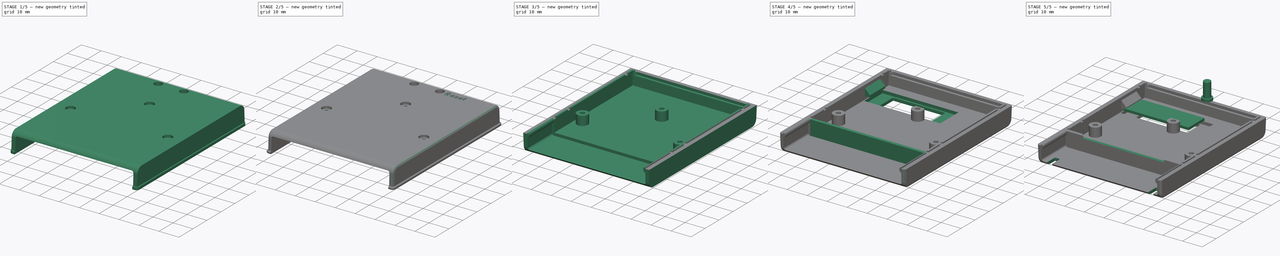
[diagram: build sequence overview — one tinted view per stage of 5, left to right]
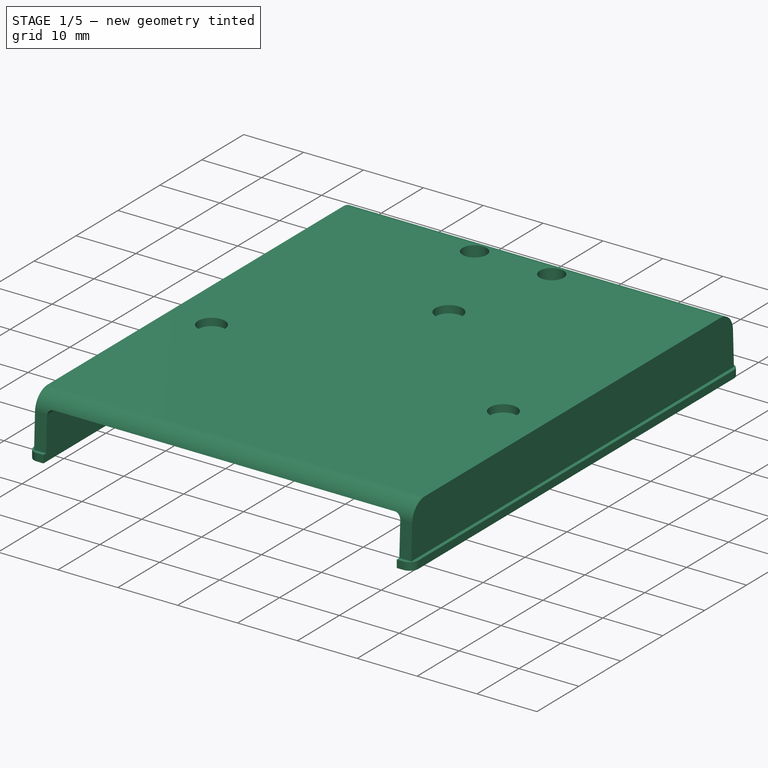
[diagram: stage 1 of 5 — iso view after this stage's code; geometry added in this stage tinted green]
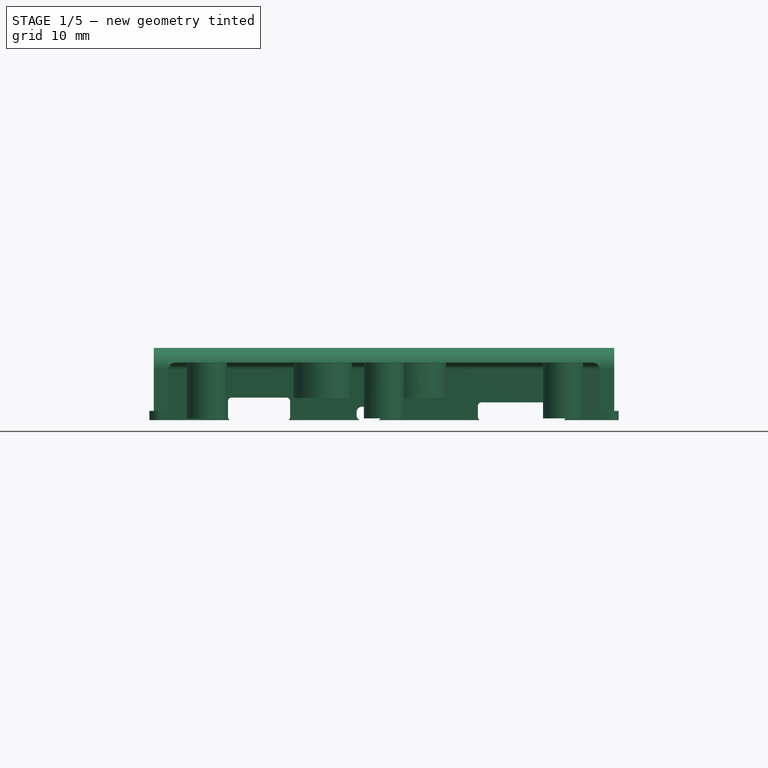
[diagram: stage 1 of 5 — front view after this stage's code; geometry added in this stage tinted green]
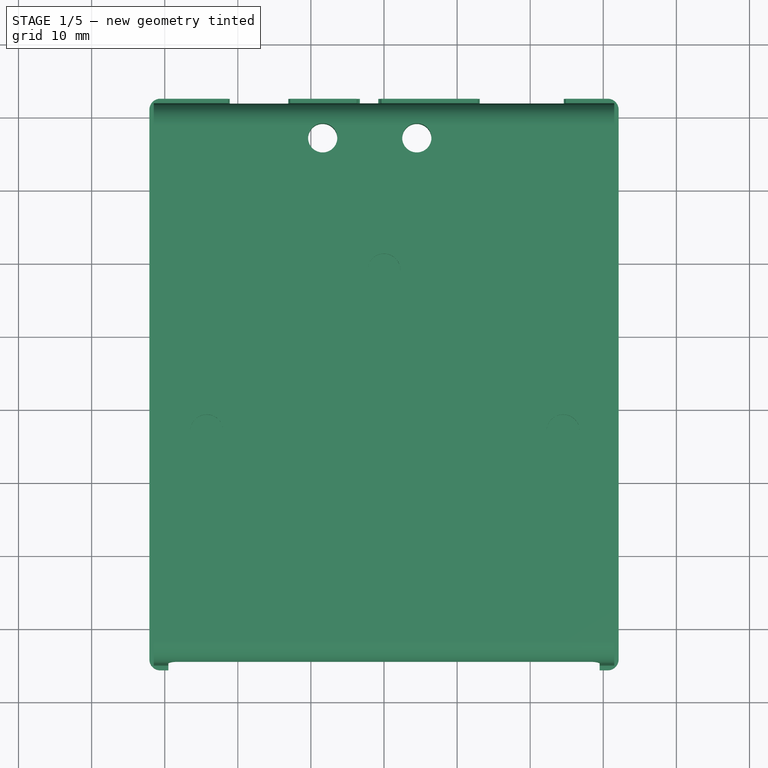
[diagram: stage 1 of 5 — top view after this stage's code; geometry added in this stage tinted green]
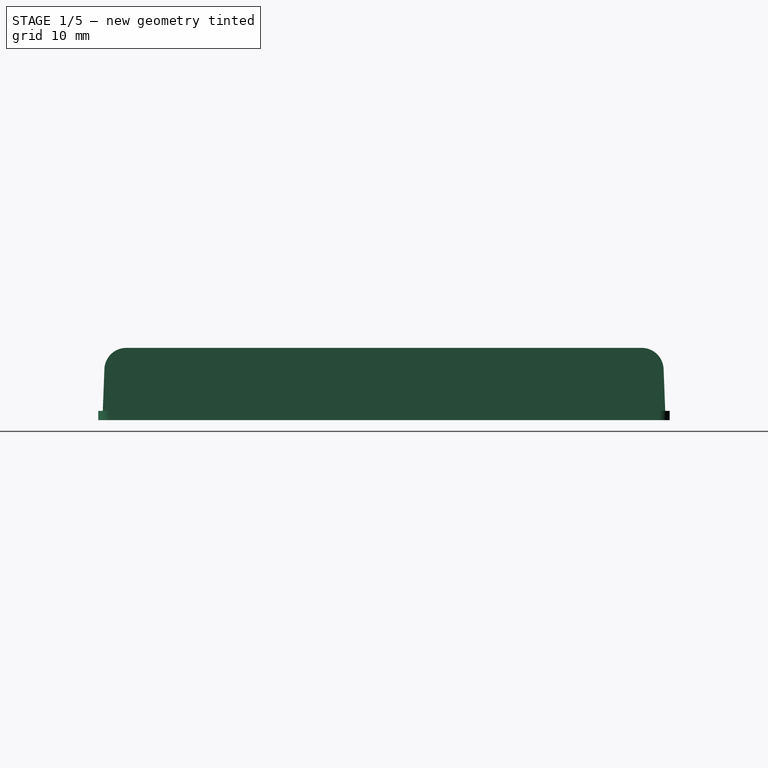
[diagram: stage 1 of 5 — right view after this stage's code; geometry added in this stage tinted green]
FCSTD DOCUMENT  (FreeCAD 1.0R39285 (Git))
Label: DecentCart2040
License: Creative Commons Attribution 4.0
LicenseURL: https://creativecommons.org/licenses/by/4.0/
objects: Part::Feature×30, Sketcher::SketchObject×24, PartDesign::Pad×16, PartDesign::Pocket×16, App::Part×8, PartDesign::SubShapeBinder×8, PartDesign::Plane×4, PartDesign::Body×4, PartDesign::Fillet×4, PartDesign::Point×2, PartDesign::Draft×2, PartDesign::Thickness×2, App::LinkGroup×2, PartDesign::Line×1, App::VRMLObject×1, PartDesign::Chamfer×1, PartDesign::FeatureBase×1, Part::Box×1, Part::Part2DObjectPython×1, Measure::MeasureDistance×1
note: 224 computed .brp shape members not serialized (recipe doc carries the construction recipe); baked Part::Feature solids carry a one-line shape summary decoded from their .brp

FEATURE [Part::Feature] Part__Feature  label="SMxB-SRSS-TB"
  shape: bbox 5 x 4.95 x 2.95 mm, 225 faces, 6 solids (baked)
FEATURE [App::Part] SM3B_SRSS_TB  label="SM3B-SRSS-TB"
  Group = -> [Part__Feature]
  Origin = -> Origin
  Placement = pos=(89.374,-62.678,1.65) rot=(0,0,1;1.5708rad)
FEATURE [Part::Feature] Part__Feature001  label="TS-1187A v2"
  shape: bbox 6.5 x 5.1 x 1.4 mm, 132 faces, 10 solids (baked)
FEATURE [App::Part] TS_1187A  label="TS-1187A"
  Group = -> [Part__Feature001]
  Origin = -> Origin001
  Placement = pos=(74.5,-30.9,1.65) rot=(0,0,1;0rad)
FEATURE [Part::Feature] Part__Feature002  label="microSD_card_slot"
  shape: bbox 15.98 x 15.49 x 2.409 mm, 614 faces, 11 solids (baked)
FEATURE [App::Part] micro_SD_card_slot  label="micro SD card slot"
  Group = -> [Part__Feature002]
  Origin = -> Origin002
  Placement = pos=(81.59,-35.242,10.55) rot=(0,0,1;3.14159rad)
FEATURE [Part::Feature] Part__Feature003  label="microSD"
  shape: bbox 11.09 x 15 x 1.06 mm, 110 faces, 9 solids (baked)
FEATURE [App::Part] microSD_card
  Group = -> [Part__Feature003]
  Origin = -> Origin003
  Placement = pos=(81.52,-33.992,10.45) rot=(0,0,1;3.14159rad)
FEATURE [Part::Feature] Part__Feature004  label="TS-1187A v003"
  shape: bbox 6.5 x 5.1 x 1.4 mm, 132 faces, 10 solids (baked)
FEATURE [App::Part] TS_1187A001  label="TS-1187A001"
  Group = -> [Part__Feature004]
  Origin = -> Origin004
  Placement = pos=(61.6,-30.9,1.65) rot=(0,0,1;0rad)
FEATURE [Part::Feature] Part__Feature005  label="SMxB-SRSS-TB001"
  shape: bbox 5 x 4.95 x 2.95 mm, 225 faces, 6 solids (baked)
FEATURE [App::Part] SM3B_SRSS_TB001  label="SM3B-SRSS-TB001"
  Group = -> [Part__Feature005]
  Origin = -> Origin005
  Placement = pos=(77.506,-57.457,1.65) rot=(0,0,1;1.5708rad)
FEATURE [Part::Feature] Part__Feature006  label="0.91in OLED Module - Without Glass"
  shape: bbox 37.96 x 12.13 x 2.951 mm, 1592 faces, 19 solids (baked)
FEATURE [App::Part] __91in_OLED_Module___Without_Glass  label="0.91in OLED Module - Without Glass001"
  Group = -> [Part__Feature006]
  Origin = -> Origin006
  Placement = pos=(60.9875,-40.45,-6.55) rot=(0,1,0;3.14159rad)
FEATURE [Part::Feature] Part__Feature007  label="DecentCart2040_PCB"
  shape: bbox 56 x 70 x 1.6 mm, 37 faces (baked)
FEATURE [App::Part] DecentCart2040_1  label="DecentCart2040 1"
  Group = -> [SM3B_SRSS_TB,TS_1187A,micro_SD_card_slot,microSD_card,TS_1187A001,SM3B_SRSS_TB001,__91in_OLED_Module___Without_Glass,Part__Feature007]
  Origin = -> Origin007
FEATURE [PartDesign::SubShapeBinder] Binder  label="PCB Binder"
  BindCopyOnChange = 0
  BindMode = 0
  ClaimChildren = false
  Context = -> Body [Binder.]
  Fuse = false
  MakeFace = true
  OffsetFill = false
  OffsetIntersection = false
  OffsetJoinType = 0
  OffsetOpenResult = false
  PartialLoad = false
  Placement = pos=(-70,98,-2) rot=(0,0,1;0rad)
  Relative = true
  Support = -> [DecentCart2040_1[Part__Feature007.]]
  _Version = 2
FEATURE [Sketcher::SketchObject] Sketch
  ArcFitTolerance = 1e-06
  AttachmentSupport = -> [YZ_Plane008]
  ExternalGeometry = -> [Binder]
  FullyConstrained = true
  MakeInternals = false
  MapMode = 5
  Placement = pos=(0,0,0) rot=(0.57735,0.57735,0.57735;2.0944rad)
  sketch-geometry (7):
    g0: LineSegment StartX=-5 StartY=0 StartZ=0 EndX=-4.75 EndY=6.36769 EndZ=0
    g1: ArcOfCircle CenterX=-1.75231 CenterY=6.25 CenterZ=0 NormalX=0 NormalY=0 NormalZ=1 AngleXU=0 Radius=3 StartAngle=1.5708 EndAngle=3.10235
    g2: LineSegment StartX=-1.75231 StartY=9.25 StartZ=0 EndX=68.7523 EndY=9.25 EndZ=0
    g3: ArcOfCircle CenterX=68.7523 CenterY=6.25 CenterZ=0 NormalX=0 NormalY=0 NormalZ=1 AngleXU=0 Radius=3 StartAngle=0.0392405 EndAngle=1.5708
    g4: LineSegment StartX=71.75 StartY=6.36769 StartZ=0 EndX=72 EndY=0 EndZ=0
    g5: LineSegment StartX=72 StartY=0 StartZ=0 EndX=-5 EndY=0 EndZ=0
    g6: LineSegment [constr] StartX=33.5 StartY=0 StartZ=0 EndX=33.5 EndY=9.25 EndZ=0
  constraints (18):
    c: PointOnObject(g0,g-1)
    c: Tangent(g0,g1) = 1.5708
    c: Horizontal(g2)
    c: Tangent(g2,g3) = 1.5708
    c: Coincident(g4,g5)
    c: Coincident(g5,g0)
    c: Tangent(g3,g4) = 1.5708
    c: Tangent(g1,g2) = 1.5708
    c: Horizontal(g0,g3)
    c: Radius(g1) = 3
    c: DistanceX(g0,g3) = 76.5
    c: DistanceX(g0,g4) = 77
    c: PointOnObject(g6,g2)
    c: Symmetric(g1,g2,g6)
    c: DistanceY(g4,g2) = 9.25
    c: DistanceX(g0,g-3) = 5
    c: Symmetric(g0,g4,g6)
    c: PointOnObject(g6,g-1)
FEATURE [PartDesign::Pad] Pad  label="General shape of the thing"
  Direction = (1,0,0)
  Length = 63
  Length2 = 10
  Midplane = true
  Placement = pos=(0,0,0) rot=(1,1,1;2.0944rad)
  Profile = -> Sketch
  ReferenceAxis = -> Sketch [N_Axis]
  Suppressed = false
  Type = 0
FEATURE [PartDesign::Thickness] Thickness  label="Dig the insides"
  Base = -> Pad [Face6]
  BaseFeature = -> Pad
  Intersection = false
  Join = 0
  Mode = 0
  Reversed = true
  SupportTransform = false
  Suppressed = false
  Value = 2
FEATURE [Sketcher::SketchObject] Sketch001
  ArcFitTolerance = 1e-06
  AttachmentSupport = -> [Thickness]
  ExternalGeometry = -> [Thickness]
  FullyConstrained = true
  MakeInternals = false
  MapMode = 5
  Placement = pos=(0,0,-2e-16) rot=(1,0,0;3.14159rad)
  expr: Constraints[15] = .Constraints.offset
  expr: Constraints[16] = .Constraints.offset
  expr: Constraints[17] = .Constraints.offset
  sketch-geometry (16):
    g0: LineSegment StartX=-29.5 StartY=2.99846 StartZ=0 EndX=-29.5 EndY=-69.9985 EndZ=0
    g1: LineSegment StartX=-29.5 StartY=-69.9985 StartZ=0 EndX=29.5 EndY=-69.9985 EndZ=0
    g2: LineSegment StartX=29.5 StartY=-69.9985 StartZ=0 EndX=29.5 EndY=2.99846 EndZ=0
    g3: LineSegment StartX=29.5 StartY=2.99846 StartZ=0 EndX=-29.5 EndY=2.99846 EndZ=0
    g4: LineSegment StartX=-32.1 StartY=4.1 StartZ=0 EndX=-32.1 EndY=-71.1 EndZ=0
    g5: LineSegment StartX=-30.6 StartY=-72.6 StartZ=0 EndX=30.6 EndY=-72.6 EndZ=0
    g6: LineSegment StartX=32.1 StartY=-71.1 StartZ=0 EndX=32.1 EndY=4.1 EndZ=0
    g7: LineSegment StartX=30.6 StartY=5.6 StartZ=0 EndX=-30.6 EndY=5.6 EndZ=0
    g8: ArcOfCircle CenterX=-30.6 CenterY=4.1 CenterZ=0 NormalX=0 NormalY=0 NormalZ=1 AngleXU=0 Radius=1.5 StartAngle=1.5708 EndAngle=3.14159
    g9: GeomPoint [constr] X=-32.1 Y=5.6 Z=0
    g10: ArcOfCircle CenterX=30.6 CenterY=4.1 CenterZ=0 NormalX=0 NormalY=0 NormalZ=1 AngleXU=0 Radius=1.5 StartAngle=3e-16 EndAngle=1.5708
    g11: GeomPoint [constr] X=32.1 Y=5.6 Z=0
    g12: ArcOfCircle CenterX=30.6 CenterY=-71.1 CenterZ=0 NormalX=0 NormalY=0 NormalZ=1 AngleXU=0 Radius=1.5 StartAngle=4.71239 EndAngle=6.28319
    g13: GeomPoint [constr] X=32.1 Y=-72.6 Z=0
    g14: ArcOfCircle CenterX=-30.6 CenterY=-71.1 CenterZ=0 NormalX=0 NormalY=0 NormalZ=1 AngleXU=0 Radius=1.5 StartAngle=3.14159 EndAngle=4.71239
    g15: GeomPoint [constr] X=-32.1 Y=-72.6 Z=0
  constraints (38):
    c: Coincident(g0,g1)
    c: Coincident(g1,g2)
    c: Coincident(g2,g3)
    c: Coincident(g3,g0)
    c: Vertical(g0)
    c: Vertical(g2)
    c: Horizontal(g1)
    c: Horizontal(g3)
    c: Coincident(g0,g-8)
    c: Coincident(g1,g-10)
    c: Vertical(g4)
    c: Vertical(g6)
    c: Horizontal(g5)
    c: Horizontal(g7)
    c: DistanceX(g9,g-3) = 0.6  'offset'
    c: DistanceY(g-3,g9) = 0.6
    c: DistanceX(g-5,g13) = 0.6
    c: DistanceY(g13,g-5) = 0.6
    c: PointOnObject(g9,g4)
    c: PointOnObject(g9,g7)
    c: Tangent(g4,g8) = -1.5708
    c: Tangent(g7,g8) = -1.5708
    c: PointOnObject(g11,g7)
    c: PointOnObject(g11,g6)
    c: Tangent(g7,g10) = -1.5708
    c: Tangent(g6,g10) = -1.5708
    c: PointOnObject(g13,g6)
    c: PointOnObject(g13,g5)
    c: Tangent(g6,g12) = -1.5708
    c: Tangent(g5,g12) = -1.5708
    c: PointOnObject(g15,g5)
    c: PointOnObject(g15,g4)
    c: Tangent(g5,g14) = -1.5708
    c: Tangent(g4,g14) = -1.5708
    c: Radius(g8) = 1.5
    c: Equal(g8,g10)
    c: Equal(g8,g14)
    c: Equal(g8,g12)
FEATURE [PartDesign::Pad] Pad001  label="Rim"
  BaseFeature = -> Thickness
  Direction = (0,0,-1)
  Length = 1.27
  Length2 = 10
  Midplane = true
  Profile = -> Sketch001
  ReferenceAxis = -> Sketch001 [N_Axis]
  Refine = true
  Suppressed = false
  Type = 0
FEATURE [PartDesign::Plane] DatumPlane  label="Top of PCB"
  AttachmentOffset = pos=(0,0,0.3) rot=(0,0,1;0rad)
  AttachmentSupport = -> [Pad001]
  Length = 78.6346
  MapMode = 2
  Placement = pos=(0,0,0.3) rot=(0,0,1;0rad)
  ResizeMode = 0
  Width = 112.635
FEATURE [PartDesign::Plane] DatumPlane001  label="Bottom of PCB"
  AttachmentOffset = pos=(0,0,-0.4) rot=(0,0,1;0rad)
  AttachmentSupport = -> [XY_Plane008]
  Length = 78.6346
  MapMode = 5
  Placement = pos=(0,0,-0.4) rot=(0,0,1;0rad)
  ResizeMode = 0
  Width = 112.635
FEATURE [Sketcher::SketchObject] Sketch002
  ArcFitTolerance = 1e-06
  AttachmentOffset = pos=(0,0,-73) rot=(0,0,1;0rad)
  AttachmentSupport = -> [XZ_Plane008]
  ExternalGeometry = -> [DatumPlane001]
  FullyConstrained = true
  MakeInternals = false
  MapMode = 5
  Placement = pos=(0,73,-1.62e-14) rot=(1,0,0;1.5708rad)
  sketch-geometry (34):
    g0: LineSegment StartX=12.85 StartY=1.3 StartZ=0 EndX=12.85 EndY=-0.2 EndZ=0
    g1: LineSegment StartX=13.35 StartY=-0.7 StartZ=0 EndX=24.35 EndY=-0.7 EndZ=0
    g2: LineSegment StartX=24.85 StartY=-0.2 StartZ=0 EndX=24.85 EndY=1.3 EndZ=0
    g3: LineSegment StartX=24.35 StartY=1.8 StartZ=0 EndX=13.35 EndY=1.8 EndZ=0
    g4: LineSegment StartX=-21.35 StartY=1.95 StartZ=0 EndX=-21.35 EndY=-0.2 EndZ=0
    g5: LineSegment StartX=-20.85 StartY=-0.7 StartZ=0 EndX=-13.35 EndY=-0.7 EndZ=0
    g6: LineSegment StartX=-12.85 StartY=-0.2 StartZ=0 EndX=-12.85 EndY=1.95 EndZ=0
    g7: LineSegment StartX=-13.35 StartY=2.45 StartZ=0 EndX=-20.85 EndY=2.45 EndZ=0
    g8: ArcOfCircle CenterX=13.35 CenterY=1.3 CenterZ=0 NormalX=0 NormalY=0 NormalZ=1 AngleXU=0 Radius=0.5 StartAngle=1.5708 EndAngle=3.14159
    g9: GeomPoint [constr] X=12.85 Y=1.8 Z=0
    g10: ArcOfCircle CenterX=13.35 CenterY=-0.2 CenterZ=0 NormalX=0 NormalY=0 NormalZ=1 AngleXU=0 Radius=0.5 StartAngle=3.14159 EndAngle=4.71239
    g11: GeomPoint [constr] X=12.85 Y=-0.7 Z=0
    g12: ArcOfCircle CenterX=24.35 CenterY=1.3 CenterZ=0 NormalX=0 NormalY=0 NormalZ=1 AngleXU=0 Radius=0.5 StartAngle=2e-16 EndAngle=1.5708
    g13: GeomPoint [constr] X=24.85 Y=1.8 Z=0
    g14: ArcOfCircle CenterX=24.35 CenterY=-0.2 CenterZ=0 NormalX=0 NormalY=0 NormalZ=1 AngleXU=0 Radius=0.5 StartAngle=4.71239 EndAngle=6.28319
    g15: GeomPoint [constr] X=24.85 Y=-0.7 Z=0
    g16: ArcOfCircle CenterX=-20.85 CenterY=1.95 CenterZ=0 NormalX=0 NormalY=0 NormalZ=1 AngleXU=0 Radius=0.5 StartAngle=1.5708 EndAngle=3.14159
    g17: GeomPoint [constr] X=-21.35 Y=2.45 Z=0
    g18: ArcOfCircle CenterX=-20.85 CenterY=-0.2 CenterZ=0 NormalX=0 NormalY=0 NormalZ=1 AngleXU=0 Radius=0.5 StartAngle=3.14159 EndAngle=4.71239
    g19: GeomPoint [constr] X=-21.35 Y=-0.7 Z=0
    g20: ArcOfCircle CenterX=-13.35 CenterY=-0.2 CenterZ=0 NormalX=0 NormalY=0 NormalZ=1 AngleXU=0 Radius=0.5 StartAngle=4.71239 EndAngle=6.28319
    g21: GeomPoint [constr] X=-12.85 Y=-0.7 Z=0
    g22: ArcOfCircle CenterX=-13.35 CenterY=1.95 CenterZ=0 NormalX=0 NormalY=0 NormalZ=1 AngleXU=0 Radius=0.5 StartAngle=0 EndAngle=1.5708
    g23: GeomPoint [constr] X=-12.85 Y=2.45 Z=0
    g24: Circle [constr] CenterX=-1.09 CenterY=0.45 CenterZ=0 NormalX=0 NormalY=0 NormalZ=1 AngleXU=0 Radius=0.75
    g25: Circle [constr] CenterX=-3 CenterY=0.45 CenterZ=0 NormalX=0 NormalY=0 NormalZ=1 AngleXU=0 Radius=0.75
    g26: ArcOfCircle CenterX=-3 CenterY=0.45 CenterZ=0 NormalX=0 NormalY=0 NormalZ=1 AngleXU=0 Radius=0.75 StartAngle=1.5708 EndAngle=3.14159
    g27: ArcOfCircle CenterX=-1.09 CenterY=0.45 CenterZ=0 NormalX=0 NormalY=0 NormalZ=1 AngleXU=0 Radius=0.75 StartAngle=0 EndAngle=1.5708
    g28: LineSegment StartX=-3 StartY=1.2 StartZ=0 EndX=-1.09 EndY=1.2 EndZ=0
    g29: LineSegment StartX=-3.75 StartY=0.45 StartZ=0 EndX=-3.75 EndY=0.05 EndZ=0
    g30: ArcOfCircle CenterX=-3 CenterY=0.05 CenterZ=0 NormalX=0 NormalY=0 NormalZ=1 AngleXU=0 Radius=0.75 StartAngle=3.14159 EndAngle=4.71239
    g31: LineSegment StartX=-3 StartY=-0.7 StartZ=0 EndX=-1.09 EndY=-0.7 EndZ=0
    g32: ArcOfCircle CenterX=-1.09 CenterY=0.05 CenterZ=0 NormalX=0 NormalY=0 NormalZ=1 AngleXU=0 Radius=0.75 StartAngle=4.71239 EndAngle=6.28319
    g33: LineSegment StartX=-0.34 StartY=0.05 StartZ=0 EndX=-0.34 EndY=0.45 EndZ=0
  constraints (84):
    c: Vertical(g0)
    c: Vertical(g2)
    c: Horizontal(g1)
    c: Horizontal(g3)
    c: Vertical(g4)
    c: Vertical(g6)
    c: Horizontal(g5)
    c: Horizontal(g7)
    c: PointOnObject(g9,g3)
    c: PointOnObject(g9,g0)
    c: Tangent(g3,g8) = -1.5708
    c: Tangent(g0,g8) = -1.5708
    c: Radius(g8) = 0.5  'fillet'
    c: PointOnObject(g11,g1)
    c: PointOnObject(g11,g0)
    c: Tangent(g1,g10) = -1.5708
    c: Tangent(g0,g10) = -1.5708
    c: PointOnObject(g13,g2)
    c: PointOnObject(g13,g3)
    c: Tangent(g2,g12) = -1.5708
    c: Tangent(g3,g12) = -1.5708
    c: PointOnObject(g15,g2)
    c: PointOnObject(g15,g1)
    c: Tangent(g2,g14) = -1.5708
    c: Tangent(g1,g14) = -1.5708
    c: Equal(g8,g12)
    c: Equal(g8,g14)
    c: Equal(g8,g10)
    c: DistanceX(g-1,g0) = 12.85
    c: DistanceX(g0,g2) = 12
    c: PointOnObject(g17,g7)
    c: PointOnObject(g17,g4)
    c: Tangent(g7,g16) = -1.5708
    c: Tangent(g4,g16) = -1.5708
    c: PointOnObject(g19,g4)
    c: PointOnObject(g19,g5)
    c: Tangent(g4,g18) = -1.5708
    c: Tangent(g5,g18) = -1.5708
    c: PointOnObject(g21,g5)
    c: PointOnObject(g21,g6)
    c: Tangent(g5,g20) = -1.5708
    c: Tangent(g6,g20) = -1.5708
    c: PointOnObject(g23,g6)
    c: PointOnObject(g23,g7)
    c: Tangent(g6,g22) = -1.5708
    c: Tangent(g7,g22) = -1.5708
    c: Equal(g22,g8)
    c: Equal(g16,g22)
    c: Equal(g16,g20)
    c: Equal(g16,g18)
    c: DistanceX(g6,g-1) = 12.85
    c: DistanceX(g4,g6) = 8.5
    c: DistanceY(g5,g7) = 3.15
    c: Diameter(g24) = 1.5
    c: Horizontal(g24,g25)
    c: Equal(g24,g25)
    c: DistanceX(g24,g-1) = 1.09
    c: DistanceX(g25,g-1) = 3
    c: DistanceY(g-1,g24) = 0.45
    c: DistanceY(g-1,g7) = 2.45
    c: Tangent(g26,g28) = 1.5708
    c: Tangent(g27,g28) = 1.5708
    c: Equal(g26,g27)
    c: Coincident(g26,g25)
    c: Coincident(g27,g24)
    c: Equal(g27,g24)
    c: DistanceY(g3,g7) = 0.65
    c: Horizontal(g1,g5)
    c: Horizontal(g25,g26)
    c: Horizontal(g24,g27)
    c: Coincident(g26,g29)
    c: Vertical(g29)
    c: Tangent(g29,g30) = -1.5708
    c: Coincident(g30,g31)
    c: Horizontal(g31)
    c: Tangent(g31,g32) = -1.5708
    c: Coincident(g32,g33)
    c: Coincident(g33,g27)
    c: Vertical(g33)
    c: Equal(g26,g30)
    c: Equal(g27,g32)
    c: Vertical(g30,g30)
    c: Horizontal(g32,g32)
    c: Horizontal(g31,g1)
FEATURE [PartDesign::Pocket] Pocket  label="SD and USB slots"
  BaseFeature = -> Pad001
  Direction = (0,1,-2e-16)
  Length = 4
  Length2 = 5
  Profile = -> Sketch002
  ReferenceAxis = -> Sketch002 [N_Axis]
  Reversed = true
  Suppressed = false
  Type = 0
FEATURE [Sketcher::SketchObject] Sketch003
  ArcFitTolerance = 1e-06
  AttachmentOffset = pos=(0,0,-2) rot=(0,0,1;0rad)
  AttachmentSupport = -> [Pocket]
  FullyConstrained = true
  MakeInternals = false
  MapMode = 5
  Placement = pos=(0,2e-15,7.25) rot=(0,0,1;0rad)
  sketch-geometry (4):
    g0: Circle CenterX=-8.39 CenterY=67.1 CenterZ=0 NormalX=0 NormalY=0 NormalZ=1 AngleXU=0 Radius=4
    g1: Circle CenterX=4.49 CenterY=67.1 CenterZ=0 NormalX=0 NormalY=0 NormalZ=1 AngleXU=0 Radius=4
    g2: Circle CenterX=-8.39 CenterY=67.1 CenterZ=0 NormalX=0 NormalY=0 NormalZ=1 AngleXU=0 Radius=2
    g3: Circle CenterX=4.49 CenterY=67.1 CenterZ=0 NormalX=0 NormalY=0 NormalZ=1 AngleXU=0 Radius=2
  constraints (10):
    c: Horizontal(g0,g1)
    c: Equal(g0,g1)
    c: Diameter(g0) = 8
    c: Distance(g1,g-2) = 4.49
    c: Distance(g0,g-2) = 8.39
    c: Distance(g1,g-1) = 67.1
    c: Diameter(g2) = 4
    c: Coincident(g2,g0)
    c: Coincident(g3,g1)
    c: Equal(g3,g2)
FEATURE [PartDesign::Pad] Pad002  label="Button columns"
  BaseFeature = -> Pocket
  Direction = (0,0,1)
  Length = 4.85
  Length2 = 10
  Profile = -> Sketch003 [Edge2,Edge1]
  ReferenceAxis = -> Sketch003 [N_Axis]
  Reversed = true
  Suppressed = false
  Type = 0
FEATURE [PartDesign::Pocket] Pocket001  label="Button pockets"
  BaseFeature = -> Pad002
  Direction = (0,0,-1)
  Length = 5
  Length2 = 5
  Midplane = true
  Profile = -> Sketch003 [Edge4,Edge3]
  ReferenceAxis = -> Sketch003 [N_Axis]
  Suppressed = false
  Type = 1
FEATURE [PartDesign::Body] Body002  label="Boot select button"
  AllowCompound = false
  Group = -> [Clone]
  Origin = -> Origin010
  Placement = pos=(-12.88,0,-0.85) rot=(0,0,1;0rad)
  Tip = -> Clone
FEATURE [Sketcher::SketchObject] Sketch005
  ArcFitTolerance = 1e-06
  AttachmentSupport = -> [XZ_Plane008]
  ExternalGeometry = -> [Pocket001]
  FullyConstrained = true
  MakeInternals = false
  MapMode = 5
  Placement = pos=(0,0,0) rot=(1,0,0;1.5708rad)
  sketch-geometry (8):
    g0: LineSegment StartX=-29.5 StartY=-0.635 StartZ=0 EndX=29.5 EndY=-0.635 EndZ=0
    g1: LineSegment StartX=29.5 StartY=-0.635 StartZ=0 EndX=29.5 EndY=6.25 EndZ=0
    g2: LineSegment StartX=28.5 StartY=7.25 StartZ=0 EndX=-28.5 EndY=7.25 EndZ=0
    g3: LineSegment StartX=-29.5 StartY=6.25 StartZ=0 EndX=-29.5 EndY=-0.635 EndZ=0
    g4: ArcOfCircle CenterX=-28.5 CenterY=6.25 CenterZ=0 NormalX=0 NormalY=0 NormalZ=1 AngleXU=0 Radius=1 StartAngle=1.5708 EndAngle=3.14159
    g5: GeomPoint [constr] X=-29.5 Y=7.25 Z=0
    g6: ArcOfCircle CenterX=28.5 CenterY=6.25 CenterZ=0 NormalX=0 NormalY=0 NormalZ=1 AngleXU=0 Radius=1 StartAngle=4e-16 EndAngle=1.5708
    g7: GeomPoint [constr] X=29.5 Y=7.25 Z=0
  constraints (18):
    c: Coincident(g0,g1)
    c: Coincident(g3,g0)
    c: Horizontal(g0)
    c: Horizontal(g2)
    c: Vertical(g1)
    c: Vertical(g3)
    c: Coincident(g0,g-4)
    c: Coincident(g7,g-3)
    c: PointOnObject(g5,g3)
    c: PointOnObject(g5,g2)
    c: Tangent(g3,g4) = -1.5708
    c: Tangent(g2,g4) = -1.5708
    c: PointOnObject(g7,g2)
    c: PointOnObject(g7,g1)
    c: Tangent(g2,g6) = -1.5708
    c: Tangent(g1,g6) = -1.5708
    c: Equal(g4,g6)
    c: Radius(g4) = 1
FEATURE [PartDesign::Pocket] Pocket002  label="PCB opening"
  BaseFeature = -> Pocket001
  Direction = (0,1,-2e-16)
  Length = 5
  Length2 = 5
  Profile = -> Sketch005
  ReferenceAxis = -> Sketch005 [N_Axis]
  Refine = true
  Reversed = true
  Suppressed = false
  Type = 1
FEATURE [Sketcher::SketchObject] Sketch006
  ArcFitTolerance = 1e-06
  AttachmentSupport = -> [Pocket002]
  FullyConstrained = true
  MakeInternals = false
  MapMode = 5
  Placement = pos=(0,2e-15,9.25) rot=(0,0,1;0rad)
  sketch-geometry (9):
    g0: Circle CenterX=-24.25 CenterY=27 CenterZ=0 NormalX=0 NormalY=0 NormalZ=1 AngleXU=0 Radius=2.75
    g1: Circle CenterX=24.5 CenterY=27 CenterZ=0 NormalX=0 NormalY=0 NormalZ=1 AngleXU=0 Radius=2.75
    g2: Circle CenterX=0 CenterY=49 CenterZ=0 NormalX=0 NormalY=0 NormalZ=1 AngleXU=0 Radius=2.75
    g3: Circle CenterX=0 CenterY=49 CenterZ=0 NormalX=0 NormalY=0 NormalZ=1 AngleXU=0 Radius=1.1
    g4: Circle CenterX=-24.25 CenterY=27 CenterZ=0 NormalX=0 NormalY=0 NormalZ=1 AngleXU=0 Radius=1.1
    g5: Circle CenterX=24.5 CenterY=27 CenterZ=0 NormalX=0 NormalY=0 NormalZ=1 AngleXU=0 Radius=1.1
    g6: Circle CenterX=0 CenterY=49 CenterZ=0 NormalX=0 NormalY=0 NormalZ=1 AngleXU=0 Radius=2.25
    g7: Circle CenterX=24.5 CenterY=27 CenterZ=0 NormalX=0 NormalY=0 NormalZ=1 AngleXU=0 Radius=2.25
    g8: Circle CenterX=-24.25 CenterY=27 CenterZ=0 NormalX=0 NormalY=0 NormalZ=1 AngleXU=0 Radius=2.25
  constraints (21):
    c: PointOnObject(g2,g-2)
    c: Coincident(g3,g2)
    c: Coincident(g4,g0)
    c: Coincident(g5,g1)
    c: Equal(g3,g4)
    c: Equal(g3,g5)
    c: Equal(g2,g1)
    c: Equal(g2,g0)
    c: Diameter(g3) = 2.2
    c: Diameter(g2) = 5.5
    c: DistanceY(g-1,g2) = 49
    c: DistanceX(g-1,g1) = 24.5
    c: DistanceY(g-1,g1) = 27
    c: Diameter(g6) = 4.5
    c: Coincident(g6,g2)
    c: Coincident(g7,g1)
    c: Coincident(g8,g0)
    c: Equal(g6,g8)
    c: Equal(g6,g7)
    c: DistanceX(g0,g-1) = 24.25
    c: Horizontal(g0,g1)
FEATURE [PartDesign::Pad] Pad005  label="Screw columns"
  BaseFeature = -> Pocket002
  Direction = (0,0,1)
  Length = 10
  Length2 = 10
  Profile = -> Sketch006 [Edge3,Edge1,Edge2]
  ReferenceAxis = -> Sketch006 [N_Axis]
  Refine = true
  Reversed = true
  Suppressed = false
  Type = 3
  UpToFace = -> DatumPlane001
FEATURE [PartDesign::Pocket] Pocket003  label="Screw head recess"
  BaseFeature = -> Pad005
  Direction = (0,0,-1)
  Length = 1.25
  Length2 = 5
  Profile = -> Sketch006 [Edge7,Edge8,Edge9]
  ReferenceAxis = -> Sketch006 [N_Axis]
  Suppressed = false
  Type = 0
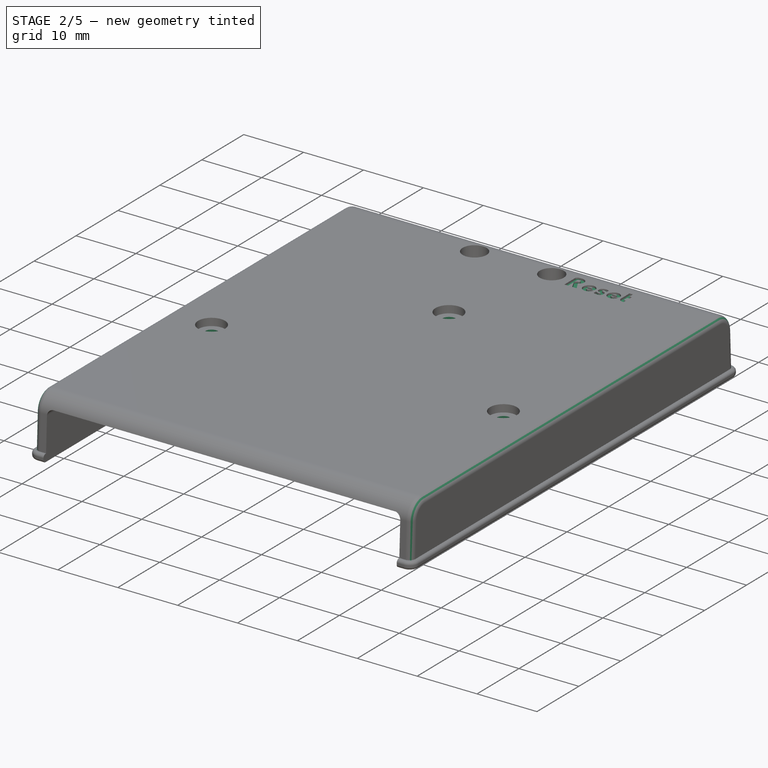
[diagram: stage 2 of 5 — iso view after this stage's code; geometry added in this stage tinted green]
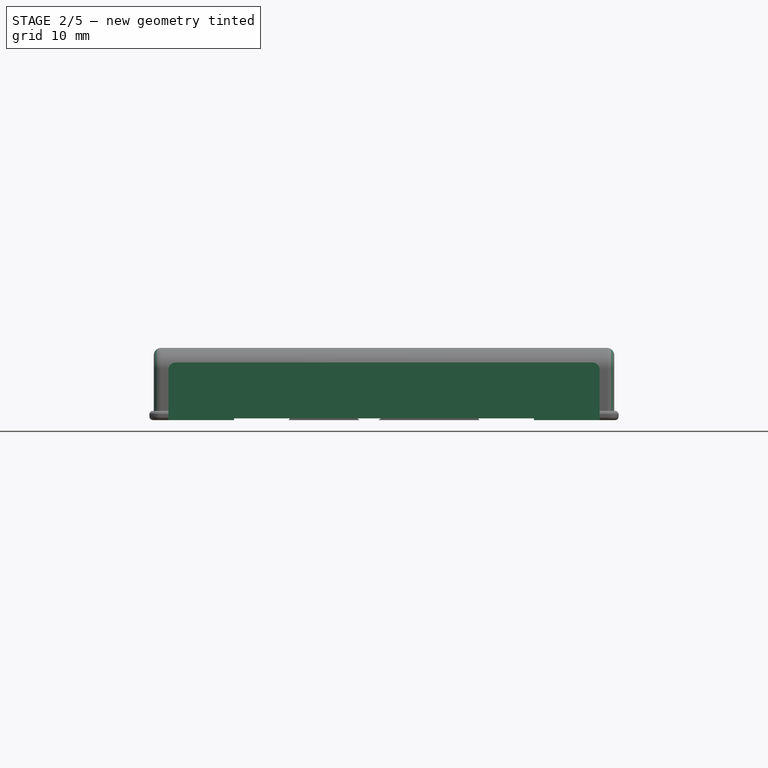
[diagram: stage 2 of 5 — front view after this stage's code; geometry added in this stage tinted green]
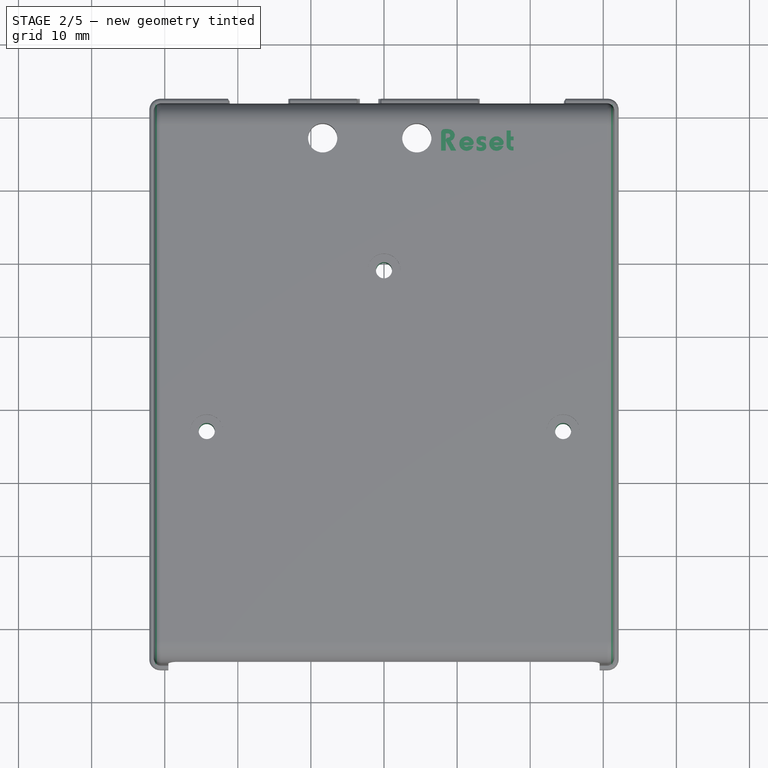
[diagram: stage 2 of 5 — top view after this stage's code; geometry added in this stage tinted green]
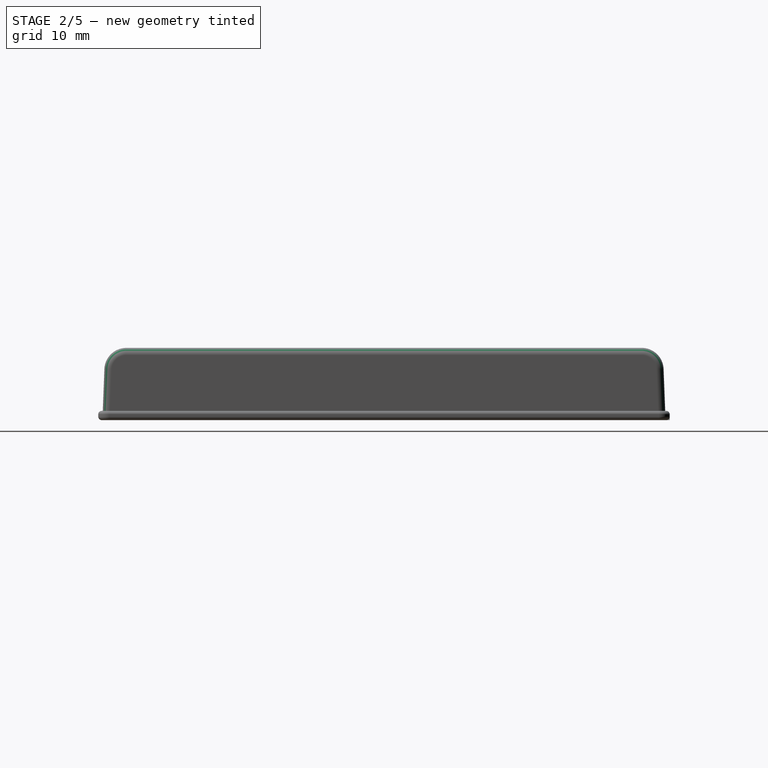
[diagram: stage 2 of 5 — right view after this stage's code; geometry added in this stage tinted green]
FEATURE [PartDesign::Pocket] Pocket004  label="Screw tunnels"
  BaseFeature = -> Pocket003
  Direction = (0,0,-1)
  Length = 5
  Length2 = 5
  Profile = -> Sketch006 [Edge5,Edge4,Edge6]
  ReferenceAxis = -> Sketch006 [N_Axis]
  Suppressed = false
  Type = 1
FEATURE [Sketcher::SketchObject] Sketch007
  ArcFitTolerance = 1e-06
  AttachmentSupport = -> [Pocket004]
  ExternalGeometry = -> [Pocket004,Binder]
  FullyConstrained = true
  MakeInternals = false
  MapMode = 5
  Placement = pos=(0,2.2e-15,7.25) rot=(1,0,0;3.14159rad)
  sketch-geometry (16):
    g0: LineSegment StartX=-29.5 StartY=-22.75 StartZ=0 EndX=-28 EndY=-23 EndZ=0
    g1: LineSegment StartX=-28 StartY=-23 StartZ=0 EndX=-28 EndY=-24.5 EndZ=0
    g2: LineSegment StartX=-28 StartY=-24.5 StartZ=0 EndX=-29.5 EndY=-24.75 EndZ=0
    g3: LineSegment StartX=-29.5 StartY=-24.75 StartZ=0 EndX=-29.5 EndY=-22.75 EndZ=0
    g4: LineSegment StartX=-29.5 StartY=-64 StartZ=0 EndX=-28 EndY=-64.25 EndZ=0
    g5: LineSegment StartX=-28 StartY=-64.25 StartZ=0 EndX=-28 EndY=-65.75 EndZ=0
    g6: LineSegment StartX=-28 StartY=-65.75 StartZ=0 EndX=-29.5 EndY=-66 EndZ=0
    g7: LineSegment StartX=-29.5 StartY=-66 StartZ=0 EndX=-29.5 EndY=-64 EndZ=0
    g8: LineSegment StartX=29.5 StartY=-64 StartZ=0 EndX=28 EndY=-64.25 EndZ=0
    g9: LineSegment StartX=28 StartY=-64.25 StartZ=0 EndX=28 EndY=-65.75 EndZ=0
    g10: LineSegment StartX=28 StartY=-65.75 StartZ=0 EndX=29.5 EndY=-66 EndZ=0
    g11: LineSegment StartX=29.5 StartY=-66 StartZ=0 EndX=29.5 EndY=-64 EndZ=0
    g12: LineSegment StartX=29.5 StartY=-22.75 StartZ=0 EndX=28 EndY=-23 EndZ=0
    g13: LineSegment StartX=28 StartY=-23 StartZ=0 EndX=28 EndY=-24.5 EndZ=0
    g14: LineSegment StartX=28 StartY=-24.5 StartZ=0 EndX=29.5 EndY=-24.75 EndZ=0
    g15: LineSegment StartX=29.5 StartY=-24.75 StartZ=0 EndX=29.5 EndY=-22.75 EndZ=0
  constraints (48):
    c: Coincident(g0,g1)
    c: Coincident(g1,g2)
    c: Coincident(g2,g3)
    c: Coincident(g3,g0)
    c: DistanceY(g1,g1) = 1.5
    c: DistanceY(g3,g3) = 2
    c: Equal(g0,g2)
    c: DistanceY(g0,g-1) = 23
    c: Coincident(g4,g5)
    c: Coincident(g5,g6)
    c: Coincident(g6,g7)
    c: Coincident(g7,g4)
    c: DistanceY(g5,g5) = 1.5
    c: DistanceY(g7,g7) = 2
    c: Equal(g4,g6)
    c: Coincident(g8,g9)
    c: Coincident(g12,g13)
    c: Coincident(g9,g10)
    c: Coincident(g13,g14)
    c: Coincident(g10,g11)
    c: Coincident(g14,g15)
    c: Coincident(g11,g8)
    c: Coincident(g15,g12)
    c: DistanceY(g9,g9) = 1.5
    c: DistanceY(g13,g13) = 1.5
    c: DistanceY(g11,g11) = 2
    c: DistanceY(g15,g15) = 2
    c: Equal(g8,g10)
    c: Equal(g12,g14)
    c: PointOnObject(g0,g-3)
    c: PointOnObject(g2,g-3)
    c: PointOnObject(g1,g-4)
    c: PointOnObject(g0,g-4)
    c: PointOnObject(g4,g-3)
    c: PointOnObject(g6,g-3)
    c: PointOnObject(g4,g-4)
    c: PointOnObject(g5,g-4)
    c: DistanceY(g4,g-1) = 64
    c: PointOnObject(g12,g-5)
    c: PointOnObject(g14,g-5)
    c: PointOnObject(g12,g-6)
    c: PointOnObject(g13,g-6)
    c: Horizontal(g12,g0)
    c: PointOnObject(g8,g-6)
    c: PointOnObject(g9,g-6)
    c: PointOnObject(g10,g-5)
    c: PointOnObject(g8,g-5)
    c: Horizontal(g4,g8)
FEATURE [PartDesign::Pad] Pad006  label="Side padding"
  BaseFeature = -> Pocket004
  Direction = (0,0,-1)
  Length = 10
  Length2 = 10
  Profile = -> Sketch007
  ReferenceAxis = -> Sketch007 [N_Axis]
  Refine = true
  Suppressed = false
  Type = 3
  UpToFace = -> Pocket004 [Face56]
FEATURE [PartDesign::Fillet] Fillet  label="Wide fillet"
  Base = -> Pad006 [Edge53,Edge134]
  BaseFeature = -> Pad006
  Radius = 1
  SupportTransform = false
  Suppressed = false
  UseAllEdges = false
FEATURE [PartDesign::Fillet] Fillet001  label="Thin fillet"
  Base = -> Fillet [Edge220,Edge83,Edge258,Edge183,Edge279,Edge294]
  BaseFeature = -> Fillet
  Radius = 0.5
  SupportTransform = false
  Suppressed = false
  UseAllEdges = false
FEATURE [PartDesign::Fillet] Fillet002  label="Column base fillet"
  Base = -> Fillet001 [Edge221,Edge222,Edge223]
  BaseFeature = -> Fillet001
  Radius = 1.5
  SupportTransform = false
  Suppressed = false
  UseAllEdges = false
FEATURE [Sketcher::SketchObject] Sketch008
  ArcFitTolerance = 1e-06
  AttachmentSupport = -> [Fillet002]
  ExternalGeometry = -> [Fillet002]
  FullyConstrained = true
  MakeInternals = false
  MapMode = 5
  Placement = pos=(0,2.2e-15,7.25) rot=(1,0,0;3.14159rad)
  sketch-geometry (4):
    g0: LineSegment StartX=-29.5 StartY=-12.9193 StartZ=0 EndX=-29.5 EndY=-14.4193 EndZ=0
    g1: LineSegment StartX=-29.5 StartY=-14.4193 StartZ=0 EndX=29.5 EndY=-14.4193 EndZ=0
    g2: LineSegment StartX=29.5 StartY=-14.4193 StartZ=0 EndX=29.5 EndY=-12.9193 EndZ=0
    g3: LineSegment StartX=29.5 StartY=-12.9193 StartZ=0 EndX=-29.5 EndY=-12.9193 EndZ=0
  constraints (12):
    c: Coincident(g0,g1)
    c: Coincident(g1,g2)
    c: Coincident(g2,g3)
    c: Coincident(g3,g0)
    c: Vertical(g0)
    c: Vertical(g2)
    c: Horizontal(g1)
    c: Horizontal(g3)
    c: PointOnObject(g2,g-3)
    c: PointOnObject(g0,g-4)
    c: DistanceY(g0,g0) = 1.5
    c: DistanceY(g0,g-5) = 17.5
FEATURE [PartDesign::Pad] Pad007  label="Lower barrier"
  BaseFeature = -> Fillet002
  Direction = (0,0,-1)
  Length = 6.6
  Length2 = 10
  Profile = -> Sketch008
  ReferenceAxis = -> Sketch008 [N_Axis]
  Refine = true
  Suppressed = false
  Type = 3
  UpToFace = -> DatumPlane001 [Plane]
FEATURE [Sketcher::SketchObject] Sketch009
  ArcFitTolerance = 1e-06
  AttachmentSupport = -> [Pad007]
  ExternalGeometry = -> [Pad007]
  FullyConstrained = true
  MakeInternals = false
  MapMode = 5
  Placement = pos=(0,0,-0.4) rot=(1,0,0;3.14159rad)
  sketch-geometry (8):
    g0: LineSegment StartX=-29.5 StartY=-12.9193 StartZ=0 EndX=-29.5 EndY=-14.4193 EndZ=0
    g1: LineSegment StartX=-29.5 StartY=-14.4193 StartZ=0 EndX=-22 EndY=-14.4193 EndZ=0
    g2: LineSegment StartX=-22 StartY=-14.4193 StartZ=0 EndX=-20.5 EndY=-12.9193 EndZ=0
    g3: LineSegment StartX=-20.5 StartY=-12.9193 StartZ=0 EndX=-29.5 EndY=-12.9193 EndZ=0
    g4: LineSegment StartX=29.5 StartY=-12.9193 StartZ=0 EndX=20.5 EndY=-12.9193 EndZ=0
    g5: LineSegment StartX=20.5 StartY=-12.9193 StartZ=0 EndX=22 EndY=-14.4193 EndZ=0
    g6: LineSegment StartX=22 StartY=-14.4193 StartZ=0 EndX=29.5 EndY=-14.4193 EndZ=0
    g7: LineSegment StartX=29.5 StartY=-14.4193 StartZ=0 EndX=29.5 EndY=-12.9193 EndZ=0
  constraints (20):
    c: Coincident(g0,g1)
    c: Coincident(g1,g2)
    c: Coincident(g2,g3)
    c: Coincident(g3,g0)
    c: Vertical(g0)
    c: Horizontal(g1)
    c: Horizontal(g3)
    c: Coincident(g4,g5)
    c: Coincident(g6,g7)
    c: Coincident(g7,g4)
    c: Horizontal(g6)
    c: Symmetric(g2,g4,g-2)
    c: DistanceX(g2,g4) = 41
    c: Coincident(g6,g5)
    c: Angle(g5,g4) = 0.785398
    c: Angle(g3,g2) = 0.785398
    c: Horizontal(g4)
    c: Coincident(g4,g-3)
    c: Coincident(g6,g-4)
    c: Coincident(g0,g-4)
FEATURE [PartDesign::Pad] Pad008  label="Top barrier"
  BaseFeature = -> Pad007
  Direction = (0,0,-1)
  Length = 2
  Length2 = 10
  Profile = -> Sketch009
  ReferenceAxis = -> Sketch009 [N_Axis]
  Refine = true
  Suppressed = false
  Type = 3
  UpToFace = -> Pad007 [Face29]
FEATURE [App::LinkGroup] LinkGroup  label="DecentCart 2040 PCB with glass"
  ElementList = -> [Box,DecentCart2040]
  LinkMode = 0
  Placement = pos=(0,0,-2.33) rot=(0,0,1;0rad)
FEATURE [PartDesign::Plane] DatumPlane002  label="Screen glass plane"
  AttachmentOffset = pos=(0,0,-9.1) rot=(0,0,1;0rad)
  AttachmentSupport = -> [XY_Plane011]
  Length = 78.6076
  MapMode = 5
  Placement = pos=(0,0,-9.1) rot=(0,0,1;0rad)
  ResizeMode = 0
  Width = 112.605
FEATURE [Sketcher::SketchObject] Sketch016
  ArcFitTolerance = 1e-06
  AttachmentOffset = pos=(0,0,1) rot=(0,0,1;0rad)
  AttachmentSupport = -> [DatumPlane002]
  FullyConstrained = true
  MakeInternals = false
  MapMode = 5
  Placement = pos=(0,0,-8.1) rot=(0,0,1;0rad)
  sketch-geometry (4):
    g0: LineSegment StartX=10 StartY=63.8 StartZ=0 EndX=-28 EndY=63.8 EndZ=0
    g1: LineSegment StartX=-28 StartY=63.8 StartZ=0 EndX=-28 EndY=50.8 EndZ=0
    g2: LineSegment StartX=-28 StartY=50.8 StartZ=0 EndX=10 EndY=50.8 EndZ=0
    g3: LineSegment StartX=10 StartY=50.8 StartZ=0 EndX=10 EndY=63.8 EndZ=0
  constraints (12):
    c: Coincident(g0,g1)
    c: Coincident(g1,g2)
    c: Coincident(g2,g3)
    c: Coincident(g3,g0)
    c: Horizontal(g0)
    c: Horizontal(g2)
    c: Vertical(g1)
    c: Vertical(g3)
    c: Distance(g1,g3) = 38
    c: Distance(g0,g2) = 13
    c: DistanceX(g-1,g2) = 10
    c: DistanceY(g-1,g2) = 50.8
FEATURE [PartDesign::Plane] DatumPlane003  label="One of the scrren holder sides"
  AttachmentOffset = pos=(0,0,-63) rot=(0,0,-1;0rad)
  AttachmentSupport = -> [XZ_Plane011]
  Length = 74.2008
  MapMode = 5
  Placement = pos=(0,63,-1.4e-14) rot=(1,0,0;1.5708rad)
  ResizeMode = 0
  Width = 61.223
FEATURE [Sketcher::SketchObject] Sketch017
  ArcFitTolerance = 1e-06
  AttachmentSupport = -> [DatumPlane003]
  FullyConstrained = true
  MakeInternals = false
  MapMode = 5
  Placement = pos=(0,63,-1.4e-14) rot=(1,0,0;1.5708rad)
  sketch-geometry (4):
    g0: LineSegment StartX=-29.5 StartY=-5 StartZ=0 EndX=-26 EndY=-5 EndZ=0
    g1: LineSegment StartX=-29.5 StartY=-0.5 StartZ=0 EndX=-29.5 EndY=-5 EndZ=0
    g2: LineSegment StartX=-26 StartY=-5 StartZ=0 EndX=-26 EndY=-4 EndZ=0
    g3: LineSegment StartX=-26 StartY=-4 StartZ=0 EndX=-29.5 EndY=-0.5 EndZ=0
  constraints (12):
    c: Horizontal(g0)
    c: Coincident(g0,g2)
    c: Coincident(g3,g1)
    c: Coincident(g1,g0)
    c: Vertical(g1)
    c: Coincident(g2,g3)
    c: Vertical(g2)
    c: Angle(g1,g3) = 0.785398
    c: DistanceX(g0,g0) = 3.5
    c: DistanceY(g2,g2) = 1
    c: DistanceY(g0,g-1) = 5
    c: DistanceX(g0,g-1) = 26
FEATURE [Part::Feature] path74
  shape: bbox 44 x 3.969 x 1.071e-05 mm, 0 faces, 0 solids (baked)
FEATURE [Part::Feature] path075
  shape: bbox 2.353 x 2.607 x 2e-07 mm, 0 faces, 0 solids (baked)
FEATURE [Part::Feature] path076
  shape: bbox 0.6245 x 1.865 x 2e-07 mm, 0 faces, 0 solids (baked)
FEATURE [Part::Feature] path78
  shape: bbox 2.017 x 2.717 x 4.595e-05 mm, 1 faces, 0 solids (baked)
FEATURE [Part::Feature] path82
  shape: bbox 2.731 x 2.776 x 4.595e-05 mm, 1 faces, 0 solids (baked)
FEATURE [Part::Feature] path077
  shape: bbox 0.5266 x 0.7805 x 4.595e-05 mm, 1 faces, 0 solids (baked)
FEATURE [Part::Feature] path86
  shape: bbox 2.28 x 2.717 x 4.595e-05 mm, 1 faces, 0 solids (baked)
FEATURE [Part::Feature] path078
  shape: bbox 0.6917 x 0.8103 x 4.595e-05 mm, 1 faces, 0 solids (baked)
FEATURE [Part::Feature] path90
  shape: bbox 1.914 x 2.709 x 4.595e-05 mm, 1 faces, 0 solids (baked)
FEATURE [Part::Feature] path96
  shape: bbox 2.548 x 2.721 x 4.595e-05 mm, 1 faces, 0 solids (baked)
FEATURE [Part::Feature] path079
  shape: bbox 1.129 x 1.769 x 4.595e-05 mm, 1 faces, 0 solids (baked)
FEATURE [Part::Feature] path100
  shape: bbox 1.66 x 2.709 x 4.595e-05 mm, 1 faces, 0 solids (baked)
FEATURE [Part::Feature] path104
  shape: bbox 2.017 x 2.717 x 4.595e-05 mm, 1 faces, 0 solids (baked)
FEATURE [Part::Feature] path108
  shape: bbox 1.66 x 2.709 x 4.595e-05 mm, 1 faces, 0 solids (baked)
FEATURE [Part::Feature] path112
  shape: bbox 2.379 x 2.847 x 4.595e-05 mm, 1 faces, 0 solids (baked)
FEATURE [Part::Feature] path116
  shape: bbox 1.914 x 2.709 x 4.595e-05 mm, 1 faces, 0 solids (baked)
FEATURE [Part::Feature] path122
  shape: bbox 2.111 x 2.776 x 4.595e-05 mm, 1 faces, 0 solids (baked)
FEATURE [Part::Feature] path126
  shape: bbox 2.236 x 2.788 x 4.595e-05 mm, 1 faces, 0 solids (baked)
FEATURE [Part::Feature] path127
  shape: bbox 0.8747 x 1.68 x 4.595e-05 mm, 1 faces, 0 solids (baked)
FEATURE [Part::Feature] path130
  shape: bbox 2.347 x 2.709 x 4.595e-05 mm, 1 faces, 0 solids (baked)
FEATURE [Part::Feature] path134
  shape: bbox 2.236 x 2.788 x 4.595e-05 mm, 1 faces, 0 solids (baked)
FEATURE [Part::Feature] path135
  shape: bbox 0.8747 x 1.68 x 4.595e-05 mm, 1 faces, 0 solids (baked)
FEATURE [App::LinkGroup] LinkGroup001  label="Logo"
  ElementList = -> [path74,path075,path076,path78,path82,path077,path86,path078,path90,path96,path079,path100,path104,path108,path112,path116,path122,path126,path127,path130,path134,path135]
  LinkMode = 0
  Placement = pos=(15.7466,67.5,-10.75) rot=(0,1,0;3.14159rad)
FEATURE [PartDesign::SubShapeBinder] Binder007  label="Logo binder"
  BindCopyOnChange = 0
  BindMode = 0
  ClaimChildren = false
  Context = -> Body003 [Binder007.]
  Fuse = false
  MakeFace = true
  OffsetFill = false
  OffsetIntersection = false
  OffsetJoinType = 0
  OffsetOpenResult = false
  PartialLoad = false
  Placement = pos=(0,0.75,1.25) rot=(0,0,1;0rad)
  Relative = true
  Support = -> [LinkGroup001]
  _Version = 2
FEATURE [Part::Part2DObjectPython] ShapeString  label="Reset"  # Draft 2D object (typed FeaturePython)
  FontFile = <path>
  Fuse = false
  Justification = 6
  JustificationReference = 0
  KeepLeftMargin = false
  MakeFace = true
  ObliqueAngle = 0
  Placement = pos=(7.8198,65.3531,9.25) rot=(0,0,-0.999058;0rad)
  ScaleToSize = true
  Size = 3
  String = Reset
  Tracking = 0
FEATURE [PartDesign::Pocket] Pocket011  label="Reset legend"
  BaseFeature = -> Pad008
  Direction = (0,0,-1)
  Length = 0.3
  Length2 = 5
  Profile = -> ShapeString
  ReferenceAxis = -> ShapeString [N_Axis]
  Suppressed = false
  Type = 0
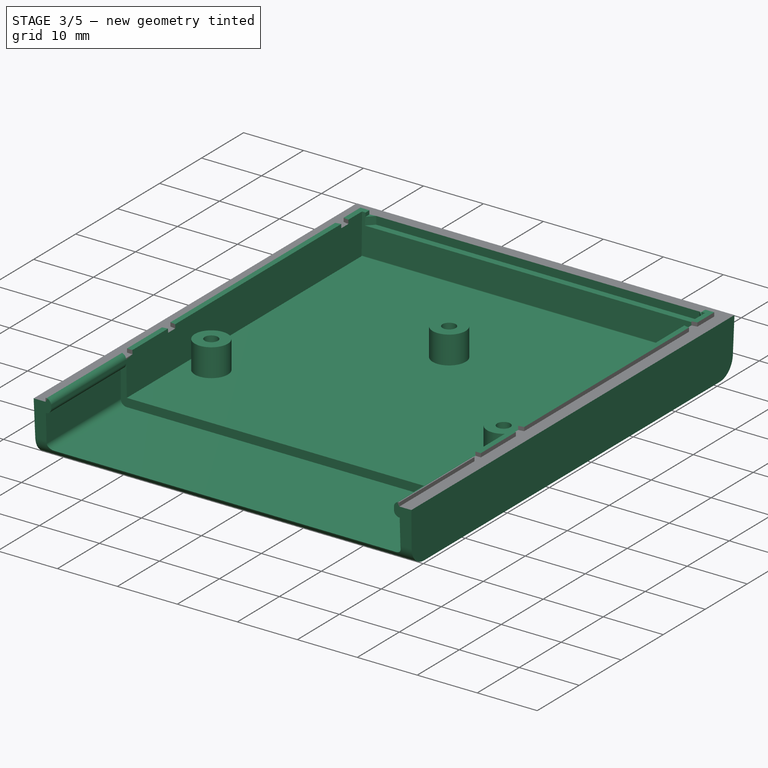
[diagram: stage 3 of 5 — iso view after this stage's code; geometry added in this stage tinted green]
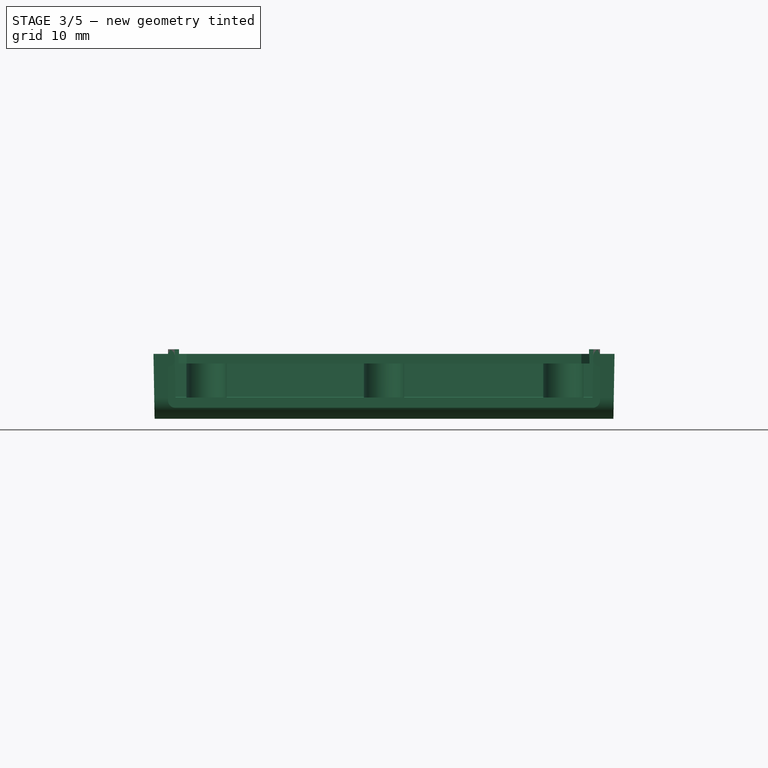
[diagram: stage 3 of 5 — front view after this stage's code; geometry added in this stage tinted green]
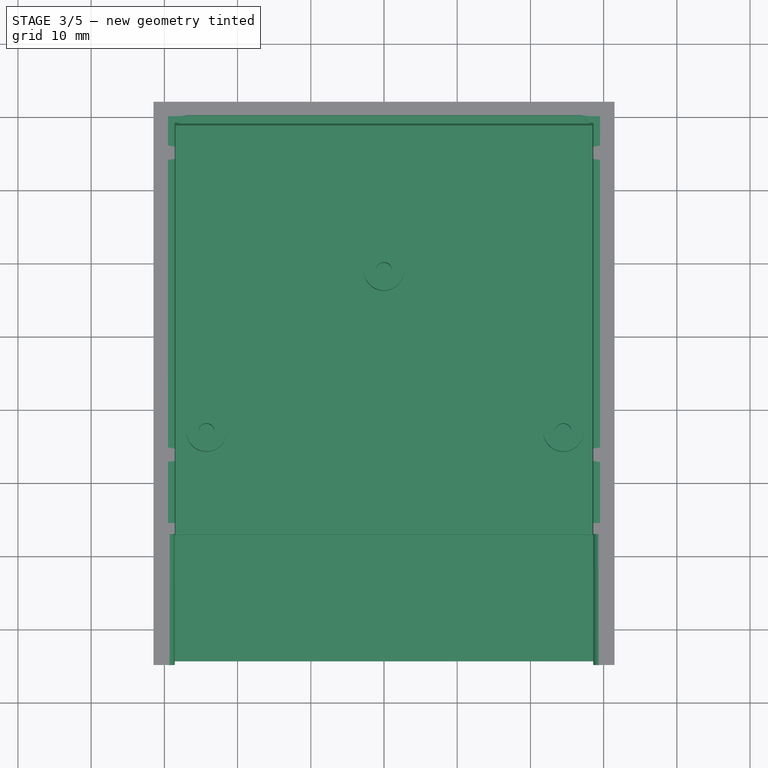
[diagram: stage 3 of 5 — top view after this stage's code; geometry added in this stage tinted green]
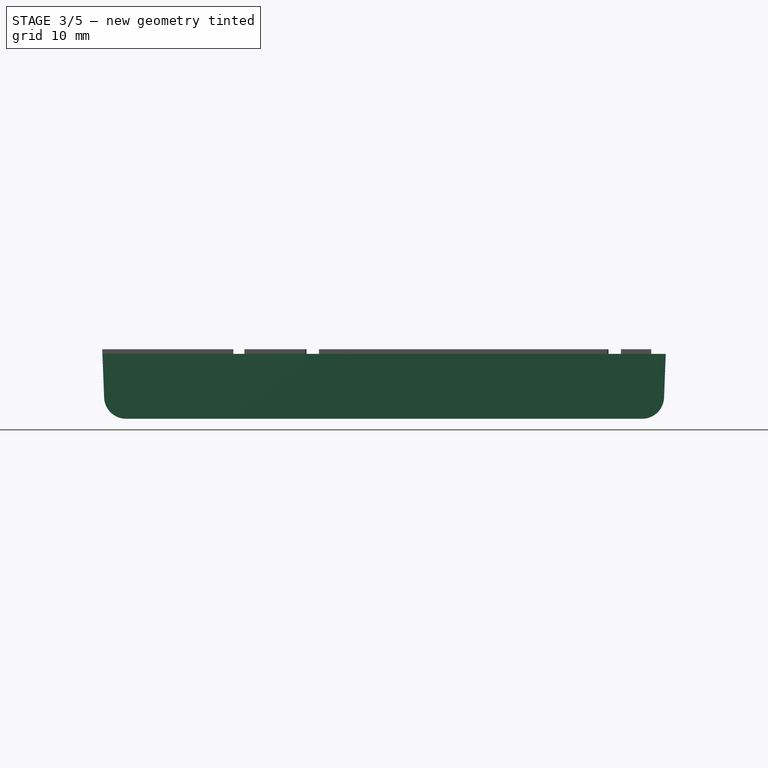
[diagram: stage 3 of 5 — right view after this stage's code; geometry added in this stage tinted green]
FEATURE [PartDesign::Point] DatumPoint  label="Top middle"
  AttacherType = Attacher::AttachEnginePoint
  AttachmentSupport = -> [Binder]
  MapMode = 37
  Placement = pos=(0,70,-2) rot=(0,0,1;0rad)
FEATURE [PartDesign::Point] DatumPoint001  label="Bottom middle"
  AttacherType = Attacher::AttachEnginePoint
  AttachmentSupport = -> [Binder]
  MapMode = 37
  Placement = pos=(0,-1.42e-14,-2) rot=(0,0,1;0rad)
FEATURE [PartDesign::Line] DatumLine  label="Mid"
  AttacherType = Attacher::AttachEngineLine
  AttachmentSupport = -> [DatumPoint,DatumPoint001]
  Length = 20
  MapMode = 29
  Placement = pos=(0,70,-2) rot=(1,0,0;1.5708rad)
  ResizeMode = 0
FEATURE [App::VRMLObject] DecentCart2040
  Placement = pos=(-70,98,1.18) rot=(0,0,1;0rad)
  Resources = DecentCart2040/shapes3D/C_0402_1005Metric.wrl | DecentCart2040/shapes3D/R_0402_1005Metric.wrl | DecentCart2040/shapes3D/TSSOP-24_4.4x7.8mm_P0.65mm.wrl | DecentCart2040/shapes3D/TSSOP-16_4.4x5mm_P0.65mm.wrl | DecentCart2040/shapes3D/LED_0603_1608Metric.wrl | DecentCart2040/shapes3D/LED_0805_2012Metric.wrl | DecentCart2040/shapes3D/SOT-23.wrl | DecentCart2040/shapes3D/R_0805_2012Metric.wrl | DecentCart2040/shapes3D/SM3B-SRSS-TB.wrl | DecentCart2040/shapes3D/SOT-223.wrl | DecentCart2040/shapes3D/SOIC-8_5.275x5.275mm_P1.27mm.wrl | DecentCart2040/shapes3D/TS-1187A.wrl | DecentCart2040/shapes3D/micro SD card slot.wrl | DecentCart2040/shapes3D/microSD_card.wrl | DecentCart2040/shapes3D/USB_Micro-B_Molex_47346-0001.wrl | DecentCart2040/shapes3D/UQFN-20-1EP_3x3mm_P0.4mm_EP1.85x1.85mm.wrl | DecentCart2040/shapes3D/QFN-56-1EP_7x7mm_P0.4mm_EP3.2x3.2mm.wrl | DecentCart2040/shapes3D/Crystal_SMD_Abracon_ABM8G-4Pin_3.2x2.5mm.wrl | DecentCart2040/shapes3D/PinHeader_1x04_P2.54mm_Vertical.wrl | DecentCart2040/shapes3D/0.91in OLED Module - Without Glass.wrl
FEATURE [PartDesign::Draft] Draft  label="Sides draft"
  Angle = 1
  Base = -> Pad [Face8,Face7]
  BaseFeature = -> Pad
  NeutralPlane = -> Pad [Face3]
  Placement = pos=(0,0,0) rot=(1,1,1;2.0944rad)
  SupportTransform = false
  Suppressed = false
FEATURE [PartDesign::SubShapeBinder] Binder002  label="Side profile binder"
  BindCopyOnChange = 0
  BindMode = 0
  ClaimChildren = false
  Context = -> Body003 [Binder002.]
  Fuse = false
  MakeFace = true
  OffsetFill = false
  OffsetIntersection = false
  OffsetJoinType = 0
  OffsetOpenResult = false
  PartialLoad = false
  Relative = true
  Support = -> [Body[Sketch.]]
  _Version = 2
FEATURE [Sketcher::SketchObject] Sketch010
  ArcFitTolerance = 1e-06
  AttachmentSupport = -> [Binder002]
  ExternalGeometry = -> [Binder002]
  FullyConstrained = true
  MakeInternals = false
  MapMode = 5
  Placement = pos=(0,0,0) rot=(0.57735,0.57735,0.57735;2.0944rad)
  sketch-geometry (6):
    g0: LineSegment StartX=-5 StartY=0 StartZ=0 EndX=72 EndY=9e-16 EndZ=0
    g1: LineSegment StartX=72 StartY=9e-16 StartZ=0 EndX=71.74 EndY=-6.61778 EndZ=0
    g2: ArcOfCircle CenterX=68.7423 CenterY=-6.5 CenterZ=0 NormalX=0 NormalY=0 NormalZ=1 AngleXU=0 Radius=3 StartAngle=4.71239 EndAngle=6.24392
    g3: LineSegment StartX=68.7423 StartY=-9.5 StartZ=0 EndX=-1.7423 EndY=-9.5 EndZ=0
    g4: ArcOfCircle CenterX=-1.7423 CenterY=-6.5 CenterZ=0 NormalX=0 NormalY=0 NormalZ=1 AngleXU=0 Radius=3 StartAngle=3.18086 EndAngle=4.71239
    g5: LineSegment StartX=-4.73999 StartY=-6.61778 StartZ=0 EndX=-5 EndY=0 EndZ=0
  constraints (14):
    c: Coincident(g-3,g0)
    c: Coincident(g0,g-5)
    c: Coincident(g0,g1)
    c: Tangent(g1,g2) = 1.5708
    c: Tangent(g3,g4) = 1.5708
    c: Coincident(g5,g0)
    c: Angle(g5,g0) = 1.53153
    c: Angle(g0,g1) = 1.53153
    c: DistanceY(g3,g0) = 9.5
    c: Horizontal(g3)
    c: Tangent(g2,g3) = 1.5708
    c: Equal(g-6,g4)
    c: Equal(g4,g2)
    c: Tangent(g4,g5) = 1.5708
FEATURE [PartDesign::Pad] Pad009  label="General shape of the front thing"
  Direction = (1,0,0)
  Length = 63
  Length2 = 10
  Midplane = true
  Profile = -> Sketch010
  ReferenceAxis = -> Sketch010 [N_Axis]
  Suppressed = false
  Type = 0
FEATURE [PartDesign::Draft] Draft001  label="Sides draft front"
  Angle = 1
  Base = -> Pad009 [Face7,Face8]
  BaseFeature = -> Pad009
  SupportTransform = false
  Suppressed = false
FEATURE [PartDesign::Thickness] Thickness001  label="Digging the front"
  Base = -> Draft001 [Face1]
  BaseFeature = -> Draft001
  Intersection = false
  Join = 1
  Mode = 0
  Reversed = true
  SupportTransform = false
  Suppressed = false
  Value = 2.9
FEATURE [PartDesign::SubShapeBinder] Binder003  label="Back binder"
  BindCopyOnChange = 0
  BindMode = 0
  ClaimChildren = false
  Context = -> Body003 [Binder003.]
  Fuse = false
  MakeFace = true
  OffsetFill = false
  OffsetIntersection = false
  OffsetJoinType = 0
  OffsetOpenResult = false
  PartialLoad = false
  Relative = true
  Support = -> [Body[Pad008.]]
  _Version = 2
FEATURE [Sketcher::SketchObject] Sketch011
  ArcFitTolerance = 1e-06
  AttachmentSupport = -> [Binder003]
  FullyConstrained = true
  MakeInternals = false
  MapMode = 5
  Placement = pos=(0,0,-0.635) rot=(1,0,0;3.14159rad)
  sketch-geometry (36):
    g0: LineSegment StartX=-32.1 StartY=5.6 StartZ=0 EndX=-29.5 EndY=5.6 EndZ=0
    g1: LineSegment StartX=29.5 StartY=5.6 StartZ=0 EndX=32.1 EndY=5.6 EndZ=0
    g2: LineSegment StartX=32.1 StartY=5.6 StartZ=0 EndX=32.1 EndY=-72.6 EndZ=0
    g3: LineSegment StartX=32.1 StartY=-72.6 StartZ=0 EndX=-32.1 EndY=-72.6 EndZ=0
    g4: LineSegment StartX=-32.1 StartY=-72.6 StartZ=0 EndX=-32.1 EndY=5.6 EndZ=0
    g5: LineSegment StartX=-29.5 StartY=5.6 StartZ=0 EndX=-29.5 EndY=-12.9193 EndZ=0
    g6: LineSegment StartX=-29.5 StartY=-12.9193 StartZ=0 EndX=-20.5 EndY=-12.9193 EndZ=0
    g7: LineSegment StartX=-20.5 StartY=-12.9193 StartZ=0 EndX=-22 EndY=-14.4193 EndZ=0
    g8: LineSegment StartX=-22 StartY=-14.4193 StartZ=0 EndX=-29.5 EndY=-14.4193 EndZ=0
    g9: LineSegment StartX=-29.5 StartY=-14.4193 StartZ=0 EndX=-29.5 EndY=-22.75 EndZ=0
    g10: LineSegment StartX=-29.5 StartY=-22.75 StartZ=0 EndX=-28 EndY=-23 EndZ=0
    g11: LineSegment StartX=-28 StartY=-23 StartZ=0 EndX=-28 EndY=-24.5 EndZ=0
    g12: LineSegment StartX=-28 StartY=-24.5 StartZ=0 EndX=-29.5 EndY=-24.75 EndZ=0
    g13: LineSegment StartX=-29.5 StartY=-24.75 StartZ=0 EndX=-29.5 EndY=-64 EndZ=0
    g14: LineSegment StartX=-29.5 StartY=-64 StartZ=0 EndX=-28 EndY=-64.25 EndZ=0
    g15: LineSegment StartX=-28 StartY=-64.25 StartZ=0 EndX=-28 EndY=-65.75 EndZ=0
    g16: LineSegment StartX=-28 StartY=-65.75 StartZ=0 EndX=-29.5 EndY=-66 EndZ=0
    g17: LineSegment StartX=-29.5 StartY=-66 StartZ=0 EndX=-29.5 EndY=-69.9985 EndZ=0
    g18: LineSegment StartX=29.5 StartY=-69.9985 StartZ=0 EndX=29.5 EndY=-66 EndZ=0
    g19: LineSegment StartX=29.5 StartY=-66 StartZ=0 EndX=28 EndY=-65.75 EndZ=0
    g20: LineSegment StartX=28 StartY=-65.75 StartZ=0 EndX=28 EndY=-64.25 EndZ=0
    g21: LineSegment StartX=28 StartY=-64.25 StartZ=0 EndX=29.5 EndY=-64 EndZ=0
    g22: LineSegment StartX=29.5 StartY=-64 StartZ=0 EndX=29.5 EndY=-24.75 EndZ=0
    g23: LineSegment StartX=29.5 StartY=-24.75 StartZ=0 EndX=28 EndY=-24.5 EndZ=0
    g24: LineSegment StartX=28 StartY=-24.5 StartZ=0 EndX=28 EndY=-23 EndZ=0
    g25: LineSegment StartX=28 StartY=-23 StartZ=0 EndX=29.5 EndY=-22.75 EndZ=0
    g26: LineSegment StartX=29.5 StartY=-22.75 StartZ=0 EndX=29.5 EndY=-14.4193 EndZ=0
    g27: LineSegment StartX=29.5 StartY=-14.4193 StartZ=0 EndX=22 EndY=-14.4193 EndZ=0
    g28: LineSegment StartX=22 StartY=-14.4193 StartZ=0 EndX=20.5 EndY=-12.9193 EndZ=0
    g29: LineSegment StartX=20.5 StartY=-12.9193 StartZ=0 EndX=29.5 EndY=-12.9193 EndZ=0
    g30: LineSegment StartX=29.5 StartY=-12.9193 StartZ=0 EndX=29.5 EndY=5.6 EndZ=0
    g31: LineSegment StartX=-29.5 StartY=-69.9985 StartZ=0 EndX=-28 EndY=-69.9985 EndZ=0
    g32: LineSegment StartX=28 StartY=-69.9985 StartZ=0 EndX=29.5 EndY=-69.9985 EndZ=0
    g33: LineSegment StartX=-28 StartY=-69.9985 StartZ=0 EndX=-28 EndY=-66.75 EndZ=0
    g34: LineSegment StartX=-28 StartY=-66.75 StartZ=0 EndX=28 EndY=-66.75 EndZ=0
    g35: LineSegment StartX=28 StartY=-66.75 StartZ=0 EndX=28 EndY=-69.9985 EndZ=0
  constraints (82):
    c: Horizontal(g0)
    c: Coincident(g0,g5)
    c: Coincident(g17,g31)
    c: Coincident(g30,g1)
    c: Horizontal(g1)
    c: Coincident(g3,g4)
    c: Coincident(g1,g2)
    c: Coincident(g2,g3)
    c: Coincident(g0,g4)
    c: Coincident(g18,g32)
    c: Vertical(g4)
    c: Vertical(g2)
    c: Horizontal(g3)
    c: PointOnObject(g-13,g1)
    c: PointOnObject(g-12,g0)
    c: PointOnObject(g-11,g4)
    c: PointOnObject(g-9,g3)
    c: PointOnObject(g-14,g2)
    c: Coincident(g5,g6)
    c: Vertical(g5)
    c: Coincident(g6,g7)
    c: Coincident(g7,g8)
    c: Coincident(g8,g9)
    c: Coincident(g9,g10)
    c: Coincident(g10,g11)
    c: Coincident(g11,g12)
    c: Coincident(g12,g13)
    c: Coincident(g13,g14)
    c: Coincident(g14,g15)
    c: Coincident(g15,g16)
    c: Coincident(g16,g17)
    c: Coincident(g18,g19)
    c: Coincident(g19,g20)
    c: Coincident(g20,g21)
    c: Coincident(g21,g22)
    c: Coincident(g22,g23)
    c: Coincident(g23,g24)
    c: Coincident(g24,g25)
    c: Coincident(g25,g26)
    c: Coincident(g26,g27)
    c: Coincident(g27,g28)
    c: Coincident(g28,g29)
    c: Coincident(g29,g30)
    c: Vertical(g30)
    c: Coincident(g7,g-16)
    c: Coincident(g6,g-15)
    c: Coincident(g5,g-15)
    c: Coincident(g8,g-16)
    c: Coincident(g-19,g10)
    c: Coincident(g-19,g9)
    c: Coincident(g11,g-20)
    c: Coincident(g12,g-20)
    c: Coincident(g-17,g29)
    c: Coincident(g28,g-17)
    c: Coincident(g27,g-18)
    c: Coincident(g26,g-18)
    c: Coincident(g25,g-21)
    c: Coincident(g24,g-21)
    c: Coincident(g23,g-22)
    c: Coincident(g22,g-22)
    c: Coincident(g-23,g15)
    c: Coincident(g16,g-23)
    c: Coincident(g14,g-24)
    c: Coincident(g13,g-24)
    c: Coincident(g20,g-25)
    c: Coincident(g21,g-25)
    c: Coincident(g19,g-26)
    c: Coincident(g18,g-26)
    c: Coincident(g31,g-5)
    c: Horizontal(g31)
    c: Horizontal(g32)
    c: PointOnObject(g31,g15)
    c: PointOnObject(g32,g20)
    c: Coincident(g18,g-6)
    c: Coincident(g31,g33)
    c: Vertical(g33)
    c: Coincident(g33,g34)
    c: Horizontal(g34)
    c: Coincident(g34,g35)
    c: Coincident(g35,g32)
    c: Vertical(g35)
    c: DistanceY(g34,g19) = 1
FEATURE [PartDesign::Pocket] Pocket005  label="Remove parts that overlap the back"
  BaseFeature = -> Thickness001
  Direction = (0,0,1)
  Length = 5
  Length2 = 5
  Profile = -> Sketch011
  ReferenceAxis = -> Sketch011 [N_Axis]
  Suppressed = false
  Type = 1
FEATURE [PartDesign::Body] Body  label="BackBody"
  AllowCompound = false
  Group = -> [Sketch,Binder,Pad,DatumPoint,DatumPoint001,DatumLine,Draft,Thickness,Sketch001,Pad001,DatumPlane,DatumPlane001,Sketch002,Pocket,Sketch003,Pad002,Pocket001,Sketch005,Pocket002,Sketch006,Pad005,Pocket003,Pocket004,Sketch007,Pad006,Fillet,Fillet001,Fillet002,Sketch008,Pad007,Sketch009,Pad008,ShapeString,Pocket011]
  Origin = -> Origin008
  Tip = -> Pocket011
FEATURE [Sketcher::SketchObject] Sketch023
  ArcFitTolerance = 1e-06
  AttachmentSupport = -> [Pocket005]
  ExternalGeometry = -> [Pocket005]
  FullyConstrained = true
  MakeInternals = false
  MapMode = 5
  Placement = pos=(0,0,-0.635) rot=(0,0,1;0rad)
  sketch-geometry (4):
    g0: LineSegment StartX=-28.2555 StartY=68.8422 StartZ=0 EndX=28.2555 EndY=68.8422 EndZ=0
    g1: LineSegment StartX=28.2555 StartY=68.8422 StartZ=0 EndX=26.9555 EndY=70.1422 EndZ=0
    g2: LineSegment StartX=26.9555 StartY=70.1422 StartZ=0 EndX=-26.9555 EndY=70.1422 EndZ=0
    g3: LineSegment StartX=-26.9555 StartY=70.1422 StartZ=0 EndX=-28.2555 EndY=68.8422 EndZ=0
  constraints (10):
    c: Coincident(g0,g1)
    c: Coincident(g1,g2)
    c: Coincident(g2,g3)
    c: Coincident(g3,g0)
    c: Angle(g0,g3) = 0.785398
    c: Symmetric(g2,g1,g-2)
    c: DistanceY(g0,g2) = 1.3
    c: Symmetric(g0,g0,g-2)
    c: PointOnObject(g0,g-3)
    c: PointOnObject(g-4,g3)
FEATURE [PartDesign::SubShapeBinder] Binder008  label="Bottom of PCB binder"
  BindCopyOnChange = 0
  BindMode = 0
  ClaimChildren = false
  Context = -> Body003 [Binder008.]
  Fuse = false
  MakeFace = true
  OffsetFill = false
  OffsetIntersection = false
  OffsetJoinType = 0
  OffsetOpenResult = false
  PartialLoad = false
  Placement = pos=(0,0,-1.2) rot=(0,0,1;0rad)
  Relative = true
  Support = -> [Body[DatumPlane001.]]
  _Version = 2
FEATURE [PartDesign::Pocket] Pocket014  label="Remove parts that overlap the PCB"
  BaseFeature = -> Pocket005
  Direction = (0,0,-1)
  Length = 0
  Length2 = 5
  Offset = 0.35
  Profile = -> Sketch023
  ReferenceAxis = -> Sketch023 [N_Axis]
  Suppressed = false
  Type = 3
  UpToFace = -> Binder008 [Face1]
FEATURE [Sketcher::SketchObject] Sketch012
  ArcFitTolerance = 1e-06
  AttachmentSupport = -> [Binder003]
  ExternalGeometry = -> [Binder004,Pocket014]
  FullyConstrained = true
  MakeInternals = false
  MapMode = 5
  Placement = pos=(0,12.9193,0) rot=(1,0,0;1.5708rad)
  sketch-geometry (12):
    g0: LineSegment StartX=-29.5 StartY=-2.3416 StartZ=0 EndX=-29.5 EndY=-7 EndZ=0
    g1: ArcOfCircle CenterX=-28.5 CenterY=-7 CenterZ=0 NormalX=0 NormalY=0 NormalZ=1 AngleXU=0 Radius=1 StartAngle=3.14159 EndAngle=4.71239
    g2: LineSegment StartX=-28.5 StartY=-8 StartZ=0 EndX=28.5 EndY=-8 EndZ=0
    g3: ArcOfCircle CenterX=28.5 CenterY=-7 CenterZ=0 NormalX=0 NormalY=0 NormalZ=1 AngleXU=0 Radius=1 StartAngle=4.71239 EndAngle=6.28319
    g4: LineSegment StartX=29.5 StartY=-7 StartZ=0 EndX=29.5 EndY=-2.3416 EndZ=0
    g5: LineSegment StartX=29.5 StartY=0 StartZ=0 EndX=-29.5 EndY=0 EndZ=0
    g6: ArcOfCircle CenterX=29.5 CenterY=-0.916438 CenterZ=0 NormalX=0 NormalY=0 NormalZ=1 AngleXU=0 Radius=0.916438 StartAngle=1.5708 EndAngle=3.14159
    g7: ArcOfCircle CenterX=29.5 CenterY=-1.41644 CenterZ=0 NormalX=0 NormalY=0 NormalZ=1 AngleXU=0 Radius=0.925166 StartAngle=3.14159 EndAngle=4.71239
    g8: LineSegment StartX=28.5836 StartY=-0.916438 StartZ=0 EndX=28.5748 EndY=-1.41644 EndZ=0
    g9: ArcOfCircle CenterX=-29.5 CenterY=-0.916438 CenterZ=0 NormalX=0 NormalY=0 NormalZ=1 AngleXU=0 Radius=0.916438 StartAngle=0 EndAngle=1.5708
    g10: ArcOfCircle CenterX=-29.5 CenterY=-1.41644 CenterZ=0 NormalX=0 NormalY=0 NormalZ=1 AngleXU=0 Radius=0.925166 StartAngle=4.71239 EndAngle=6.28319
    g11: LineSegment StartX=-28.5836 StartY=-0.916438 StartZ=0 EndX=-28.5748 EndY=-1.41644 EndZ=0
  constraints (38):
    c: Vertical(g0)
    c: Tangent(g0,g1) = -1.5708
    c: Tangent(g2,g3) = -1.5708
    c: Vertical(g4)
    c: Horizontal(g2)
    c: PointOnObject(g-4,g0)
    c: Radius(g3) = 1
    c: Equal(g3,g1)
    c: Tangent(g1,g2) = -1.5708
    c: PointOnObject(g-7,g4)
    c: Tangent(g3,g4) = -1.5708
    c: DistanceY(g2,g5) = 8
    c: PointOnObject(g5,g-1)
    c: PointOnObject(g5,g-1)
    c: PointOnObject(g5,g0)
    c: PointOnObject(g5,g4)
    c: Horizontal(g0,g4)
    c: Angle(g6) = 1.5708
    c: Coincident(g6,g5)
    c: PointOnObject(g6,g4)
    c: PointOnObject(g6,g-10)
    c: Angle(g7) = 1.5708
    c: Coincident(g7,g4)
    c: PointOnObject(g7,g4)
    c: PointOnObject(g7,g-10)
    c: DistanceY(g7,g6) = 0.5
    c: Coincident(g8,g6)
    c: Coincident(g8,g7)
    c: PointOnObject(g9,g0)
    c: Coincident(g9,g5)
    c: Horizontal(g9,g9)
    c: PointOnObject(g9,g-9)
    c: Coincident(g10,g0)
    c: PointOnObject(g10,g-9)
    c: Horizontal(g10,g10)
    c: Vertical(g10,g0)
    c: Coincident(g11,g9)
    c: Coincident(g11,g10)
FEATURE [PartDesign::Pocket] Pocket006  label="Front opening"
  BaseFeature = -> Pocket014
  Direction = (0,1,-2e-16)
  Length = 5
  Length2 = 5
  Profile = -> Sketch012
  ReferenceAxis = -> Sketch012 [N_Axis]
  Refine = true
  Reversed = true
  Suppressed = false
  Type = 1
FEATURE [Sketcher::SketchObject] Sketch013
  ArcFitTolerance = 1e-06
  AttachmentOffset = pos=(0,0,-1.5) rot=(0,0,1;0rad)
  AttachmentSupport = -> [Pocket006]
  ExternalGeometry = -> [Binder005]
  FullyConstrained = true
  MakeInternals = false
  MapMode = 5
  Placement = pos=(0,0,-8.1) rot=(0,0,1;0rad)
  sketch-geometry (6):
    g0: Circle CenterX=-1.2e-15 CenterY=49 CenterZ=0 NormalX=0 NormalY=0 NormalZ=1 AngleXU=0 Radius=2.75
    g1: Circle CenterX=-1.2e-15 CenterY=49 CenterZ=0 NormalX=0 NormalY=0 NormalZ=1 AngleXU=0 Radius=1.1
    g2: Circle CenterX=24.5 CenterY=27 CenterZ=0 NormalX=0 NormalY=0 NormalZ=1 AngleXU=0 Radius=1.1
    g3: Circle CenterX=24.5 CenterY=27 CenterZ=0 NormalX=0 NormalY=0 NormalZ=1 AngleXU=0 Radius=2.75
    g4: Circle CenterX=-24.25 CenterY=27 CenterZ=0 NormalX=0 NormalY=0 NormalZ=1 AngleXU=0 Radius=1.1
    g5: Circle CenterX=-24.25 CenterY=27 CenterZ=0 NormalX=0 NormalY=0 NormalZ=1 AngleXU=0 Radius=2.75
  constraints (12):
    c: Coincident(g0,g-7)
    c: Coincident(g1,g0)
    c: Coincident(g2,g-8)
    c: Equal(g2,g-8)
    c: Coincident(g3,g2)
    c: Coincident(g4,g-6)
    c: Equal(g4,g-6)
    c: Coincident(g5,g4)
    c: Equal(g-3,g0)
    c: Equal(g-4,g3)
    c: Equal(g-5,g5)
    c: Equal(g-7,g1)
FEATURE [PartDesign::Pad] Pad010  label="Front screw columns"
  BaseFeature = -> Pocket006
  Direction = (0,0,1)
  Length = 10
  Length2 = 10
  Offset = -0.35
  Profile = -> Sketch013 [Edge4,Edge6,Edge1]
  ReferenceAxis = -> Sketch013 [N_Axis]
  Suppressed = false
  Type = 3
  UpToFace = -> Binder008 [Face1]
FEATURE [Sketcher::SketchObject] Sketch014
  ArcFitTolerance = 1e-06
  AttachmentSupport = -> [Pad010]
  FullyConstrained = true
  MakeInternals = false
  MapMode = 5
  Placement = pos=(0,12.9193,-3e-15) rot=(1,0,0;1.5708rad)
  sketch-geometry (4):
    g0: LineSegment StartX=-28.4844 StartY=-6.6 StartZ=0 EndX=28.4844 EndY=-6.6 EndZ=0
    g1: LineSegment StartX=28.4844 StartY=-6.6 StartZ=0 EndX=29.5 EndY=-0.635 EndZ=0
    g2: LineSegment StartX=29.5 StartY=-0.635 StartZ=0 EndX=-29.5 EndY=-0.635 EndZ=0
    g3: LineSegment StartX=-29.5 StartY=-0.635 StartZ=0 EndX=-28.4844 EndY=-6.6 EndZ=0
  constraints (8):
    c: Coincident(g-3,g0)
    c: Coincident(g0,g1)
    c: Coincident(g3,g0)
    c: Coincident(g2,g3)
    c: Coincident(g1,g2)
    c: Symmetric(g3,g1,g-2)
    c: Coincident(g0,g-3)
    c: Coincident(g2,g-4)
FEATURE [PartDesign::Pocket] Pocket015  label="Front screw holes"
  BaseFeature = -> Pad010
  Direction = (0,0,-1)
  Length = 5
  Length2 = 5
  Profile = -> Sketch013 [Edge5,Edge3,Edge2]
  ReferenceAxis = -> Sketch013 [N_Axis]
  Reversed = true
  Suppressed = false
  Type = 1
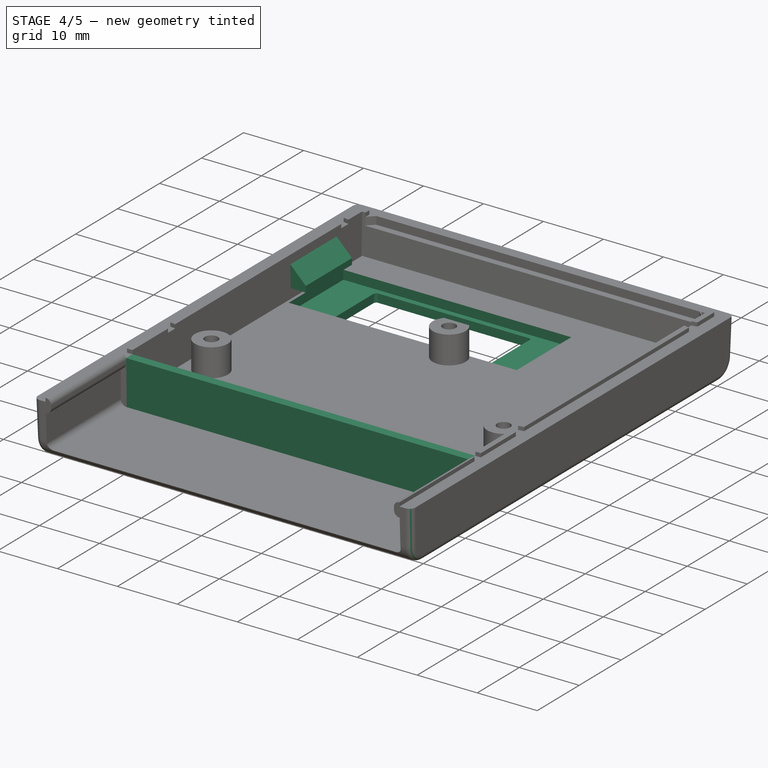
[diagram: stage 4 of 5 — iso view after this stage's code; geometry added in this stage tinted green]
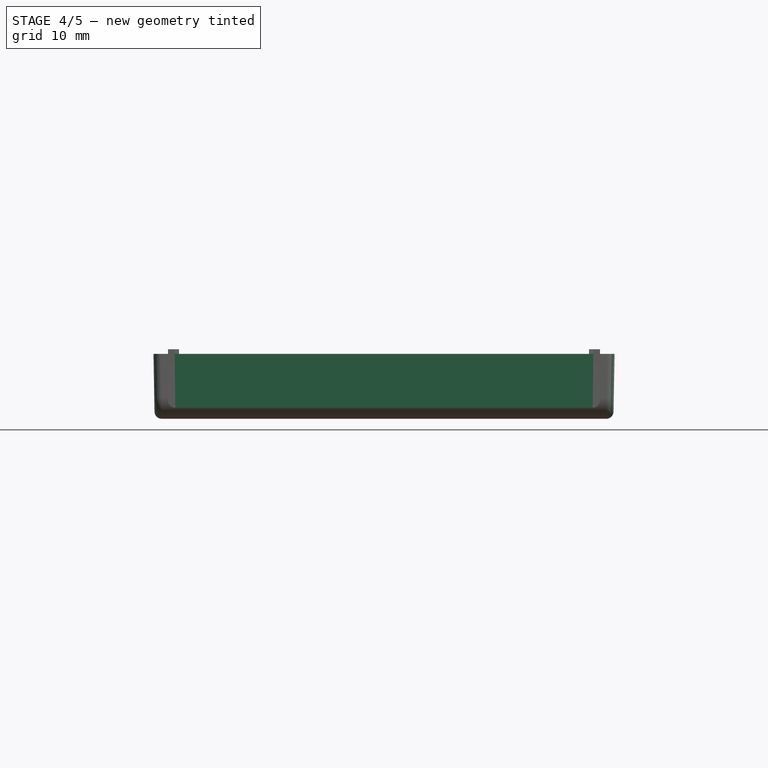
[diagram: stage 4 of 5 — front view after this stage's code; geometry added in this stage tinted green]
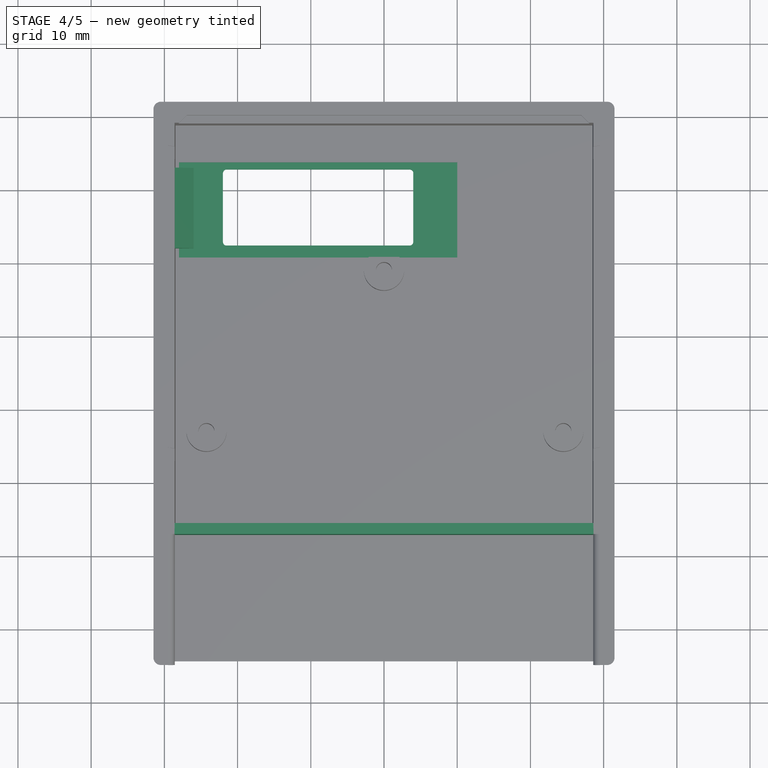
[diagram: stage 4 of 5 — top view after this stage's code; geometry added in this stage tinted green]
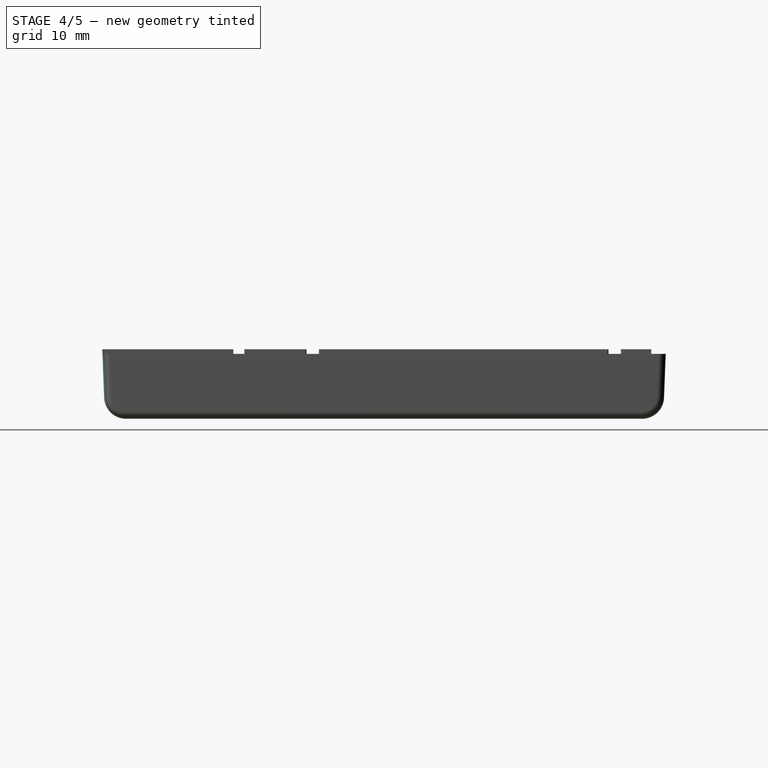
[diagram: stage 4 of 5 — right view after this stage's code; geometry added in this stage tinted green]
FEATURE [PartDesign::Pad] Pad011  label="Top PCB barrier"
  BaseFeature = -> Pocket015
  Direction = (0,-1,2e-16)
  Length = 1.5
  Length2 = 10
  Profile = -> Sketch014
  ReferenceAxis = -> Sketch014 [N_Axis]
  Refine = true
  Reversed = true
  Suppressed = false
  Type = 0
FEATURE [Sketcher::SketchObject] Sketch015
  ArcFitTolerance = 1e-06
  AttachmentSupport = -> [Pad011]
  FullyConstrained = true
  MakeInternals = false
  MapMode = 5
  Placement = pos=(0,0,-9.5) rot=(1,0,0;3.14159rad)
  sketch-geometry (12):
    g0: LineSegment StartX=-22 StartY=-52.96 StartZ=0 EndX=-22 EndY=-62.36 EndZ=0
    g1: LineSegment StartX=-21.5 StartY=-62.86 StartZ=0 EndX=3.5 EndY=-62.86 EndZ=0
    g2: LineSegment StartX=4 StartY=-62.36 StartZ=0 EndX=4 EndY=-52.96 EndZ=0
    g3: LineSegment StartX=3.5 StartY=-52.46 StartZ=0 EndX=-21.5 EndY=-52.46 EndZ=0
    g4: ArcOfCircle CenterX=3.5 CenterY=-52.96 CenterZ=0 NormalX=0 NormalY=0 NormalZ=1 AngleXU=0 Radius=0.5 StartAngle=-3.6e-15 EndAngle=1.5708
    g5: GeomPoint [constr] X=4 Y=-52.46 Z=0
    g6: ArcOfCircle CenterX=3.5 CenterY=-62.36 CenterZ=0 NormalX=0 NormalY=0 NormalZ=1 AngleXU=0 Radius=0.5 StartAngle=4.71239 EndAngle=6.28319
    g7: GeomPoint [constr] X=4 Y=-62.86 Z=0
    g8: ArcOfCircle CenterX=-21.5 CenterY=-62.36 CenterZ=0 NormalX=0 NormalY=0 NormalZ=1 AngleXU=0 Radius=0.5 StartAngle=3.14159 EndAngle=4.71239
    g9: GeomPoint [constr] X=-22 Y=-62.86 Z=0
    g10: ArcOfCircle CenterX=-21.5 CenterY=-52.96 CenterZ=0 NormalX=0 NormalY=0 NormalZ=1 AngleXU=0 Radius=0.5 StartAngle=1.5708 EndAngle=3.14159
    g11: GeomPoint [constr] X=-22 Y=-52.46 Z=0
  constraints (28):
    c: Vertical(g0)
    c: Vertical(g2)
    c: Horizontal(g1)
    c: Horizontal(g3)
    c: Distance(g11,g5) = 26
    c: Distance(g9,g11) = 10.4
    c: PointOnObject(g5,g3)
    c: PointOnObject(g5,g2)
    c: Tangent(g3,g4) = -1.5708
    c: Tangent(g2,g4) = -1.5708
    c: PointOnObject(g7,g2)
    c: PointOnObject(g7,g1)
    c: Tangent(g2,g6) = -1.5708
    c: Tangent(g1,g6) = -1.5708
    c: PointOnObject(g9,g1)
    c: PointOnObject(g9,g0)
    c: Tangent(g1,g8) = -1.5708
    c: Tangent(g0,g8) = -1.5708
    c: PointOnObject(g11,g0)
    c: PointOnObject(g11,g3)
    c: Tangent(g0,g10) = -1.5708
    c: Tangent(g3,g10) = -1.5708
    c: Radius(g4) = 0.5
    c: Equal(g4,g6)
    c: Equal(g4,g10)
    c: Equal(g4,g8)
    c: DistanceX(g-1,g2) = 4
    c: DistanceY(g3,g-1) = 52.46
FEATURE [PartDesign::Pocket] Pocket007  label="Screen pocket"
  BaseFeature = -> Pad011
  Direction = (0,0,1)
  Length = 5
  Length2 = 5
  Profile = -> Sketch015
  ReferenceAxis = -> Sketch015 [N_Axis]
  Suppressed = false
  Type = 1
FEATURE [PartDesign::Pocket] Pocket008  label="Screen glass pocket"
  BaseFeature = -> Pocket007
  Direction = (0,0,-1)
  Length = 2
  Length2 = 5
  Profile = -> Sketch016
  ReferenceAxis = -> Sketch016 [N_Axis]
  Reversed = true
  Suppressed = false
  Type = 1
FEATURE [PartDesign::Pad] Pad012  label="Screen holder"
  BaseFeature = -> Pocket008
  Direction = (0,-1,2e-16)
  Length = 11
  Length2 = 10
  Profile = -> Sketch017
  ReferenceAxis = -> Sketch017 [N_Axis]
  Refine = true
  Suppressed = false
  Type = 0
FEATURE [PartDesign::Fillet] Fillet003  label="Front wide fillet"
  Base = -> Pad012 [Edge7,Edge13]
  BaseFeature = -> Pad012
  Radius = 1
  SupportTransform = false
  Suppressed = false
  UseAllEdges = false
FEATURE [Sketcher::SketchObject] Sketch021
  ArcFitTolerance = 1e-06
  AttachmentSupport = -> [Fillet003]
  ExternalGeometry = -> [Binder007]
  FullyConstrained = true
  MakeInternals = false
  MapMode = 5
  Placement = pos=(0,0,-9.5) rot=(1,0,0;3.14159rad)
  sketch-geometry (4):
    g0: LineSegment StartX=-24.2736 StartY=-64.2804 StartZ=0 EndX=15.7483 EndY=-64.2804 EndZ=0
    g1: LineSegment StartX=15.7483 StartY=-64.2804 StartZ=0 EndX=11.7886 EndY=-68.2494 EndZ=0
    g2: LineSegment StartX=11.7886 StartY=-68.2494 StartZ=0 EndX=-28.2517 EndY=-68.2494 EndZ=0
    g3: LineSegment StartX=-28.2517 StartY=-68.2494 StartZ=0 EndX=-24.2736 EndY=-64.2804 EndZ=0
  constraints (8):
    c: Coincident(g0,g-3)
    c: Coincident(g0,g-4)
    c: Coincident(g0,g1)
    c: Coincident(g1,g-4)
    c: Coincident(g1,g2)
    c: Coincident(g2,g-3)
    c: Coincident(g2,g3)
    c: Coincident(g3,g0)
FEATURE [PartDesign::Pocket] Pocket009  label="Logo background pocket"
  BaseFeature = -> Fillet003
  Direction = (0,0,1)
  Length = 0.25
  Length2 = 5
  Profile = -> Sketch021
  ReferenceAxis = -> Sketch021 [N_Axis]
  Suppressed = false
  Type = 0
FEATURE [PartDesign::Pad] Pad013  label="Logo raised characters"
  BaseFeature = -> Pocket009
  Direction = (-8.74228e-08,1.1e-14,-1)
  Length = 0.3
  Length2 = 10
  Profile = -> Binder007 [Face7,Face9,Face10,Face11,Face12,Face13,Face1,Face2,Face4,Face6,Face14,Face15,Face17,Face18]
  Refine = true
  Reversed = true
  Suppressed = false
  Type = 0
FEATURE [PartDesign::Pocket] Pocket010  label="Logo letter pockets"
  BaseFeature = -> Pad013
  Direction = (-8.74228e-08,1.12e-14,-1)
  Length = 0.25
  Length2 = 5
  Profile = -> Binder007 [Edge71,Edge72,Edge70,Edge35,Edge36,Edge34,Edge50,Edge51,Edge52,Edge48,Edge49,Edge158,Edge159,Edge160,Edge161,Edge156,Edge157,Edge182,Edge183,Edge184,Edge185,Edge180,Edge181]
  Reversed = true
  Suppressed = false
  Type = 0
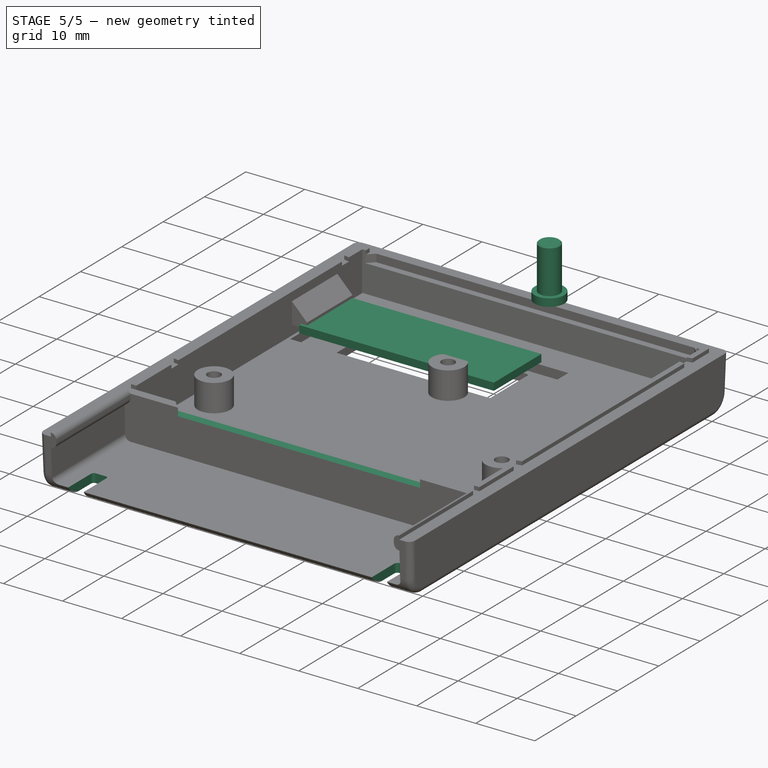
[diagram: stage 5 of 5 — iso view after this stage's code; geometry added in this stage tinted green]
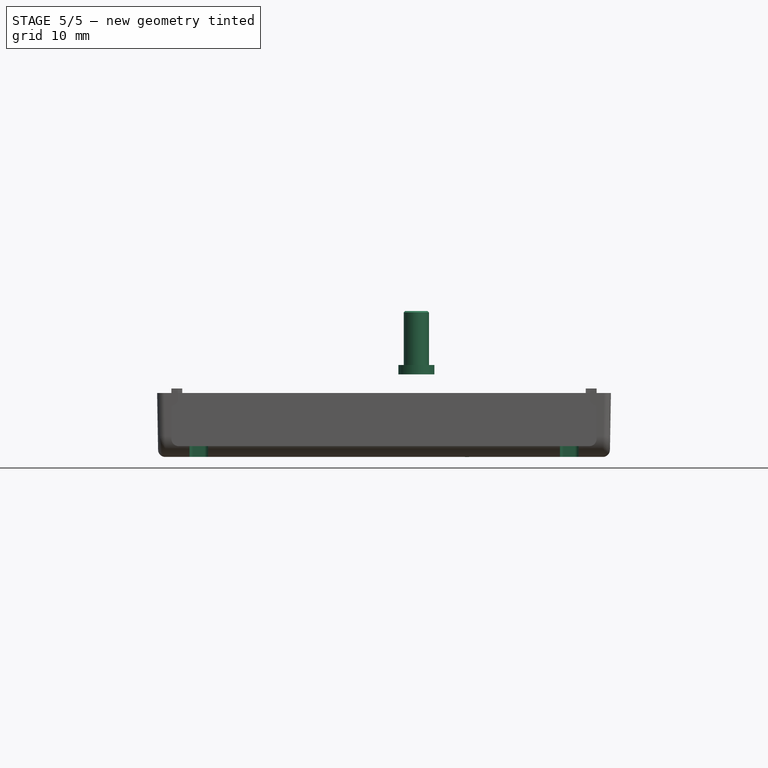
[diagram: stage 5 of 5 — front view after this stage's code; geometry added in this stage tinted green]
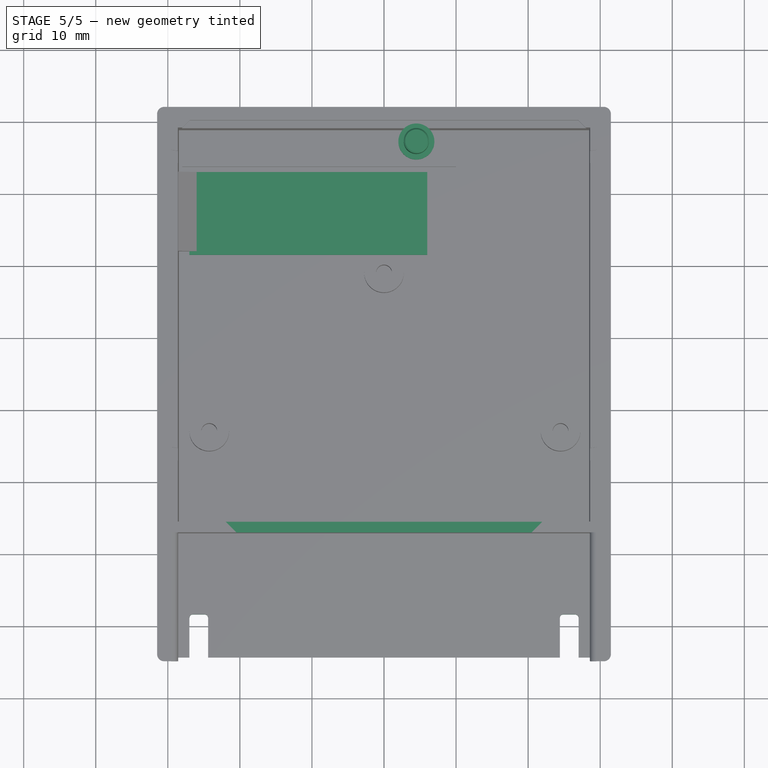
[diagram: stage 5 of 5 — top view after this stage's code; geometry added in this stage tinted green]
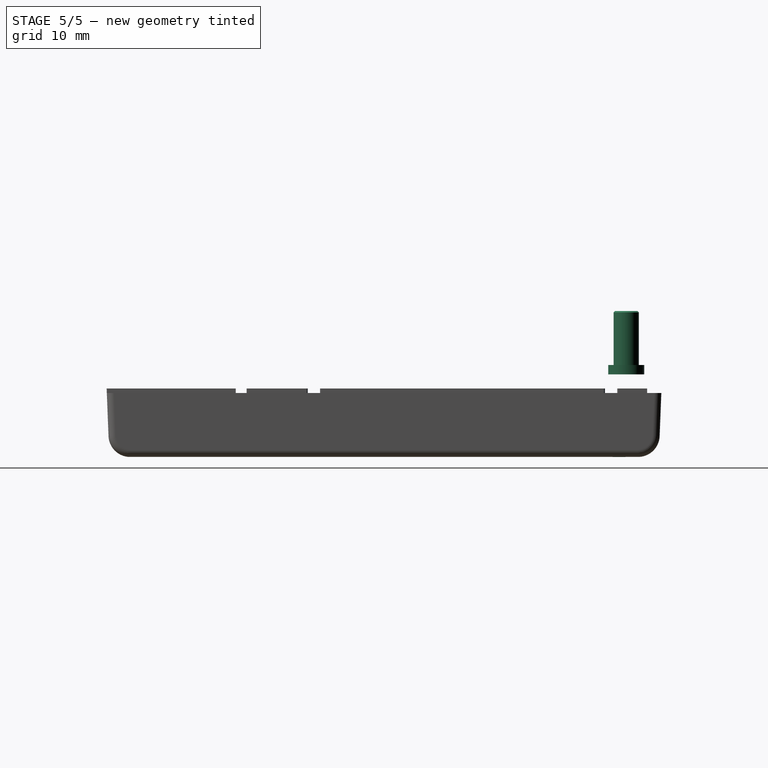
[diagram: stage 5 of 5 — right view after this stage's code; geometry added in this stage tinted green]
FEATURE [PartDesign::SubShapeBinder] Binder001
  BindCopyOnChange = 0
  BindMode = 0
  ClaimChildren = false
  Context = -> Body001 [Binder001.]
  Fuse = false
  MakeFace = true
  OffsetFill = false
  OffsetIntersection = false
  OffsetJoinType = 0
  OffsetOpenResult = false
  PartialLoad = false
  Relative = true
  Support = -> [Body[Pocket001.]]
  _Version = 2
FEATURE [Sketcher::SketchObject] Sketch004
  ArcFitTolerance = 1e-06
  AttachmentSupport = -> [Binder001]
  ExternalGeometry = -> [Binder001]
  FullyConstrained = false
  MakeInternals = false
  MapMode = 5
  Placement = pos=(0,0,3.25) rot=(1,0,0;3.14159rad)
  sketch-geometry (3):
    g0: Circle CenterX=4.49 CenterY=-67.1 CenterZ=0 NormalX=0 NormalY=0 NormalZ=1 AngleXU=0 Radius=2.5
    g1: Circle [constr] CenterX=4.49 CenterY=-67.1 CenterZ=0 NormalX=0 NormalY=0 NormalZ=1 AngleXU=0 Radius=2.9174
    g2: Circle CenterX=4.49 CenterY=-67.1 CenterZ=0 NormalX=0 NormalY=0 NormalZ=1 AngleXU=0 Radius=1.75
  constraints (4):
    c: Coincident(g1,g0)
    c: Coincident(g2,g0)
    c: Diameter(g0) = 5
    c: Diameter(g2) = 3.5
FEATURE [PartDesign::Pad] Pad003
  Direction = (0,0,-1)
  Length = 1.3
  Length2 = 10
  Profile = -> Sketch004 [Edge1]
  ReferenceAxis = -> Sketch004 [N_Axis]
  Suppressed = false
  Type = 0
FEATURE [PartDesign::Pad] Pad004
  BaseFeature = -> Pad003
  Direction = (0,0,-1)
  Length = 7.5
  Length2 = 10
  Profile = -> Sketch004 [Edge2]
  ReferenceAxis = -> Sketch004 [N_Axis]
  Reversed = true
  Suppressed = false
  Type = 0
FEATURE [PartDesign::Chamfer] Chamfer
  Angle = 45
  Base = -> Pad004 [Edge6]
  BaseFeature = -> Pad004
  ChamferType = 0
  FlipDirection = false
  Size = 0.2
  Size2 = 1
  SupportTransform = false
  Suppressed = false
  UseAllEdges = false
FEATURE [PartDesign::Body] Body001  label="Reset button"
  AllowCompound = false
  Group = -> [Binder001,Sketch004,Pad003,Pad004,Chamfer]
  Origin = -> Origin009
  Placement = pos=(0,0,-0.85) rot=(0,0,1;0rad)
  Tip = -> Chamfer
FEATURE [PartDesign::FeatureBase] Clone
  BaseFeature = -> Body001
  Suppressed = false
FEATURE [PartDesign::SubShapeBinder] Binder004  label="Back PCB opening binder"
  BindCopyOnChange = 0
  BindMode = 0
  ClaimChildren = false
  Context = -> Body003 [Binder004.]
  Fuse = false
  MakeFace = true
  OffsetFill = false
  OffsetIntersection = false
  OffsetJoinType = 0
  OffsetOpenResult = false
  PartialLoad = false
  Relative = true
  Support = -> [Body[Sketch005.]]
  _Version = 2
FEATURE [PartDesign::SubShapeBinder] Binder005  label="Screw column binder"
  BindCopyOnChange = 0
  BindMode = 0
  ClaimChildren = false
  Context = -> Body003 [Binder005.]
  Fuse = false
  MakeFace = true
  OffsetFill = false
  OffsetIntersection = false
  OffsetJoinType = 0
  OffsetOpenResult = false
  PartialLoad = false
  Relative = true
  Support = -> [Body[Sketch006.]]
  _Version = 2
FEATURE [Part::Box] Box  label="Screen glass"
  AttacherType = Attacher::AttachEngine3D
  Height = 1.25
  Length = 33
  Placement = pos=(-27,51.5,-5.7) rot=(0,0,1;0rad)
  Width = 11.5
FEATURE [Sketcher::SketchObject] Sketch018
  ArcFitTolerance = 1e-06
  AttachmentSupport = -> [Pocket010]
  FullyConstrained = false
  MakeInternals = false
  MapMode = 5
  Placement = pos=(0,0,-9.25) rot=(1,0,0;3.14159rad)
  sketch-geometry (3):
    g0: ArcOfCircle CenterX=10.75 CenterY=-66.2463 CenterZ=0 NormalX=0 NormalY=0 NormalZ=1 AngleXU=0 Radius=1.3 StartAngle=0.974421 EndAngle=5.67424
    g1: LineSegment StartX=11.4802 StartY=-65.1708 StartZ=0 EndX=11.8164 EndY=-66.99 EndZ=0
    g2: LineSegment [constr] StartX=10.75 StartY=-66.2463 StartZ=0 EndX=11.6483 EndY=-66.0804 EndZ=0
  constraints (8):
    c: Coincident(g1,g0)
    c: Coincident(g1,g0)
    c: Coincident(g2,g0)
    c: Perpendicular(g2,g1)
    c: Diameter(g0) = 2.6
    c: Angle(g2,g-2) = 1.38806
    c: Distance(g0,g0) = 1.85
    c: PointOnObject(g2,g1)
FEATURE [PartDesign::Pad] Pad014  label="Logo first raised part"
  BaseFeature = -> Pocket010
  Direction = (0,0,-1)
  Length = 0.13
  Length2 = 10
  Profile = -> Sketch018
  ReferenceAxis = -> Sketch018 [N_Axis]
  Suppressed = false
  Type = 0
FEATURE [Sketcher::SketchObject] Sketch019
  ArcFitTolerance = 1e-06
  AttachmentSupport = -> [Pad014]
  ExternalGeometry = -> [Pad014]
  FullyConstrained = true
  MakeInternals = false
  MapMode = 5
  Placement = pos=(0,0,-9.38) rot=(1,0,0;3.14159rad)
  sketch-geometry (2):
    g0: ArcOfCircle CenterX=12.5465 CenterY=-65.9144 CenterZ=0 NormalX=0 NormalY=0 NormalZ=1 AngleXU=0 Radius=1.3 StartAngle=2.53264 EndAngle=4.11601
    g1: LineSegment StartX=11.4802 StartY=-65.1708 StartZ=0 EndX=11.8164 EndY=-66.99 EndZ=0
  constraints (5):
    c: Coincident(g0,g-4)
    c: Coincident(g0,g-4)
    c: Equal(g-4,g0)
    c: Coincident(g1,g0)
    c: Coincident(g1,g0)
FEATURE [PartDesign::Pad] Pad015  label="Logo second raised part"
  BaseFeature = -> Pad014
  Direction = (0,0,-1)
  Length = 0.13
  Length2 = 10
  Profile = -> Sketch019
  ReferenceAxis = -> Sketch019 [N_Axis]
  Refine = true
  Suppressed = false
  Type = 0
FEATURE [Sketcher::SketchObject] Sketch020
  ArcFitTolerance = 1e-06
  AttachmentSupport = -> [Pad015]
  ExternalGeometry = -> [Pad015]
  FullyConstrained = true
  MakeInternals = false
  MapMode = 5
  Placement = pos=(0,0,-9.5) rot=(1,0,0;3.14159rad)
  sketch-geometry (16):
    g0: LineSegment StartX=-27 StartY=4.34038 StartZ=0 EndX=-27 EndY=-1.15962 EndZ=0
    g1: LineSegment StartX=-26.5 StartY=-1.65962 StartZ=0 EndX=-24.9 EndY=-1.65962 EndZ=0
    g2: LineSegment StartX=-24.4 StartY=-1.15962 StartZ=0 EndX=-24.4 EndY=4.34038 EndZ=0
    g3: LineSegment StartX=-24.4 StartY=4.34038 StartZ=0 EndX=-27 EndY=4.34038 EndZ=0
    g4: LineSegment StartX=24.4 StartY=4.34038 StartZ=0 EndX=24.4 EndY=-1.15962 EndZ=0
    g5: LineSegment StartX=24.9 StartY=-1.65962 StartZ=0 EndX=26.5 EndY=-1.65962 EndZ=0
    g6: LineSegment StartX=27 StartY=-1.15962 StartZ=0 EndX=27 EndY=4.34038 EndZ=0
    g7: LineSegment StartX=27 StartY=4.34038 StartZ=0 EndX=24.4 EndY=4.34038 EndZ=0
    g8: ArcOfCircle CenterX=-26.5 CenterY=-1.15962 CenterZ=0 NormalX=0 NormalY=0 NormalZ=1 AngleXU=0 Radius=0.5 StartAngle=3.14159 EndAngle=4.71239
    g9: GeomPoint [constr] X=-27 Y=-1.65962 Z=0
    g10: ArcOfCircle CenterX=-24.9 CenterY=-1.15962 CenterZ=0 NormalX=0 NormalY=0 NormalZ=1 AngleXU=0 Radius=0.5 StartAngle=4.71239 EndAngle=6.28319
    g11: GeomPoint [constr] X=-24.4 Y=-1.65962 Z=0
    g12: ArcOfCircle CenterX=24.9 CenterY=-1.15962 CenterZ=0 NormalX=0 NormalY=0 NormalZ=1 AngleXU=0 Radius=0.5 StartAngle=3.14159 EndAngle=4.71239
    g13: GeomPoint [constr] X=24.4 Y=-1.65962 Z=0
    g14: ArcOfCircle CenterX=26.5 CenterY=-1.15962 CenterZ=0 NormalX=0 NormalY=0 NormalZ=1 AngleXU=0 Radius=0.5 StartAngle=4.71239 EndAngle=6.28319
    g15: GeomPoint [constr] X=27 Y=-1.65962 Z=0
  constraints (39):
    c: Coincident(g2,g3)
    c: Coincident(g3,g0)
    c: Vertical(g0)
    c: Vertical(g2)
    c: Horizontal(g1)
    c: Horizontal(g3)
    c: Distance(g0,g2) = 2.6
    c: Distance(g9,g3) = 6
    c: Coincident(g6,g7)
    c: Coincident(g7,g4)
    c: Vertical(g4)
    c: Vertical(g6)
    c: Horizontal(g5)
    c: Horizontal(g7)
    c: DistanceX(g0,g6) = 54
    c: Symmetric(g2,g4,g-2)
    c: PointOnObject(g9,g0)
    c: PointOnObject(g9,g1)
    c: Tangent(g0,g8) = -1.5708
    c: Tangent(g1,g8) = -1.5708
    c: PointOnObject(g11,g1)
    c: PointOnObject(g11,g2)
    c: Tangent(g1,g10) = -1.5708
    c: Tangent(g2,g10) = -1.5708
    c: PointOnObject(g13,g4)
    c: PointOnObject(g13,g5)
    c: Tangent(g4,g12) = -1.5708
    c: Tangent(g5,g12) = -1.5708
    c: PointOnObject(g15,g5)
    c: PointOnObject(g15,g6)
    c: Tangent(g5,g14) = -1.5708
    c: Tangent(g6,g14) = -1.5708
    c: Radius(g8) = 0.5
    c: Equal(g8,g10)
    c: Equal(g8,g12)
    c: Equal(g8,g14)
    c: Horizontal(g5,g1)
    c: Equal(g7,g3)
    c: PointOnObject(g0,g-3)
FEATURE [PartDesign::Pocket] Pocket012  label="Slots"
  BaseFeature = -> Pad015
  Direction = (0,0,1)
  Length = 5
  Length2 = 5
  Profile = -> Sketch020
  ReferenceAxis = -> Sketch020 [N_Axis]
  Suppressed = false
  Type = 1
FEATURE [Sketcher::SketchObject] Sketch022
  ArcFitTolerance = 1e-06
  AttachmentSupport = -> [Pad011]
  ExternalGeometry = -> [Pad011,Binder003]
  FullyConstrained = true
  MakeInternals = false
  MapMode = 5
  Placement = pos=(0,0,-0.635) rot=(0,0,1;0rad)
  sketch-geometry (4):
    g0: LineSegment StartX=-22 StartY=14.4193 StartZ=0 EndX=22 EndY=14.4193 EndZ=0
    g1: LineSegment StartX=22 StartY=14.4193 StartZ=0 EndX=20.5 EndY=12.9193 EndZ=0
    g2: LineSegment StartX=20.5 StartY=12.9193 StartZ=0 EndX=-20.5 EndY=12.9193 EndZ=0
    g3: LineSegment StartX=-20.5 StartY=12.9193 StartZ=0 EndX=-22 EndY=14.4193 EndZ=0
  constraints (12):
    c: Coincident(g0,g1)
    c: Coincident(g1,g2)
    c: Coincident(g2,g3)
    c: Coincident(g3,g0)
    c: PointOnObject(g0,g-4)
    c: PointOnObject(g1,g-3)
    c: PointOnObject(g0,g-6)
    c: PointOnObject(g1,g-6)
    c: PointOnObject(g0,g-5)
    c: PointOnObject(g0,g-4)
    c: PointOnObject(g2,g-3)
    c: PointOnObject(g2,g-5)
FEATURE [PartDesign::Pocket] Pocket016  label="PCB wall window"
  BaseFeature = -> Pocket012
  Direction = (0,0,-1)
  Length = 0
  Length2 = 5
  Profile = -> Sketch022
  ReferenceAxis = -> Sketch022 [N_Axis]
  Suppressed = false
  Type = 3
  UpToFace = -> Pocket012 [Face266]
FEATURE [PartDesign::Body] Body003  label="FrontBody"
  AllowCompound = false
  Group = -> [Binder002,Sketch010,Pad009,Draft001,Thickness001,Binder003,Sketch011,Pocket005,Binder004,Sketch012,Sketch023,Binder008,Pocket014,Pocket006,Binder005,Sketch013,Pad010,Sketch014,Pocket015,Pad011,Sketch015,Sketch022,Pocket007,DatumPlane002,Sketch016,Pocket008,DatumPlane003,Sketch017,Pad012,Fillet003,Binder007,Sketch021,Pocket009,Pad013,Pocket010,Sketch018,Pad014,Sketch019,Pad015,Sketch020,Pocket012,+1 more]
  Origin = -> Origin011
  Tip = -> Pocket016
FEATURE [Measure::MeasureDistance] Distance  label="Distance: 64.20 mm"
  Distance = 64.2
  DistanceX = 64.2
  DistanceY = 0
  DistanceZ = 2e-15
  Element1 = -> Body [Pocket011.Vertex131]
  Element2 = -> Body [Pocket011.Vertex137]
  Position1 = (-32.1,71.1,-0.135)
  Position2 = (32.1,71.1,-0.135)
note: 1 file-system path scrubbed to <path> (originals preserved in the JSON sidecar)
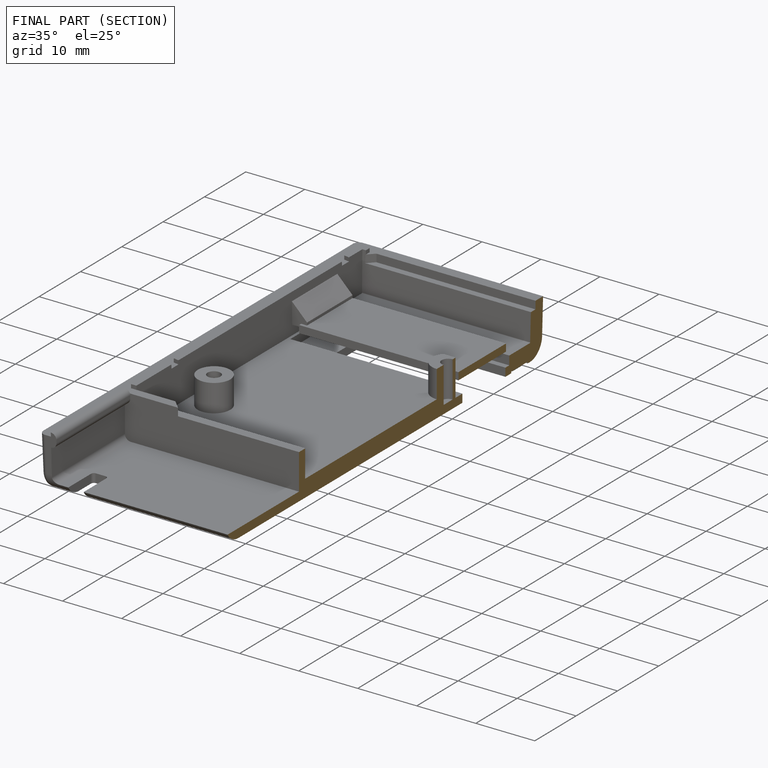
[diagram: finished part — half-section view (interior)]
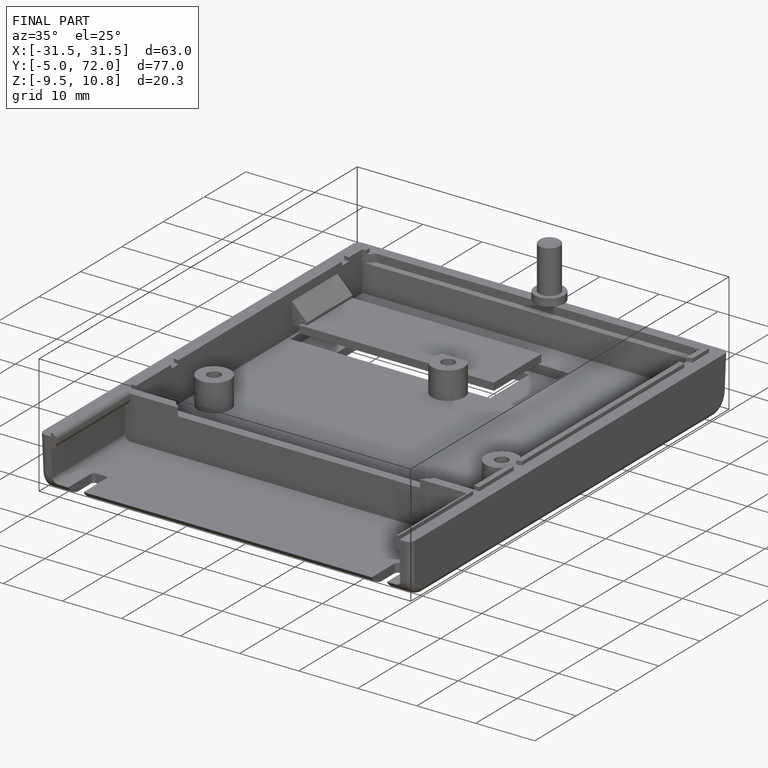
[diagram: finished part — iso view with bounding-box wireframe]
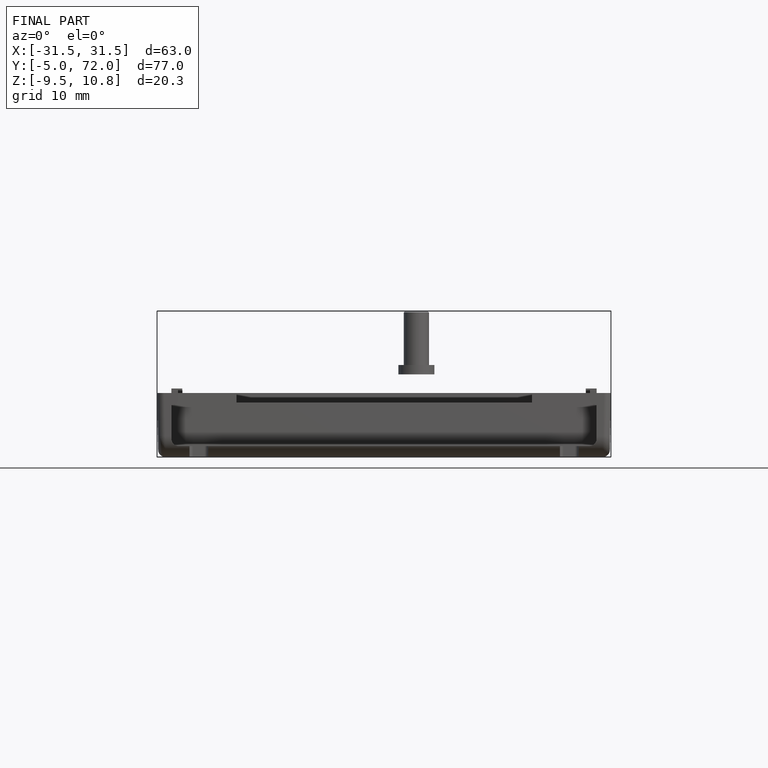
[diagram: finished part — front view with bounding-box wireframe]
